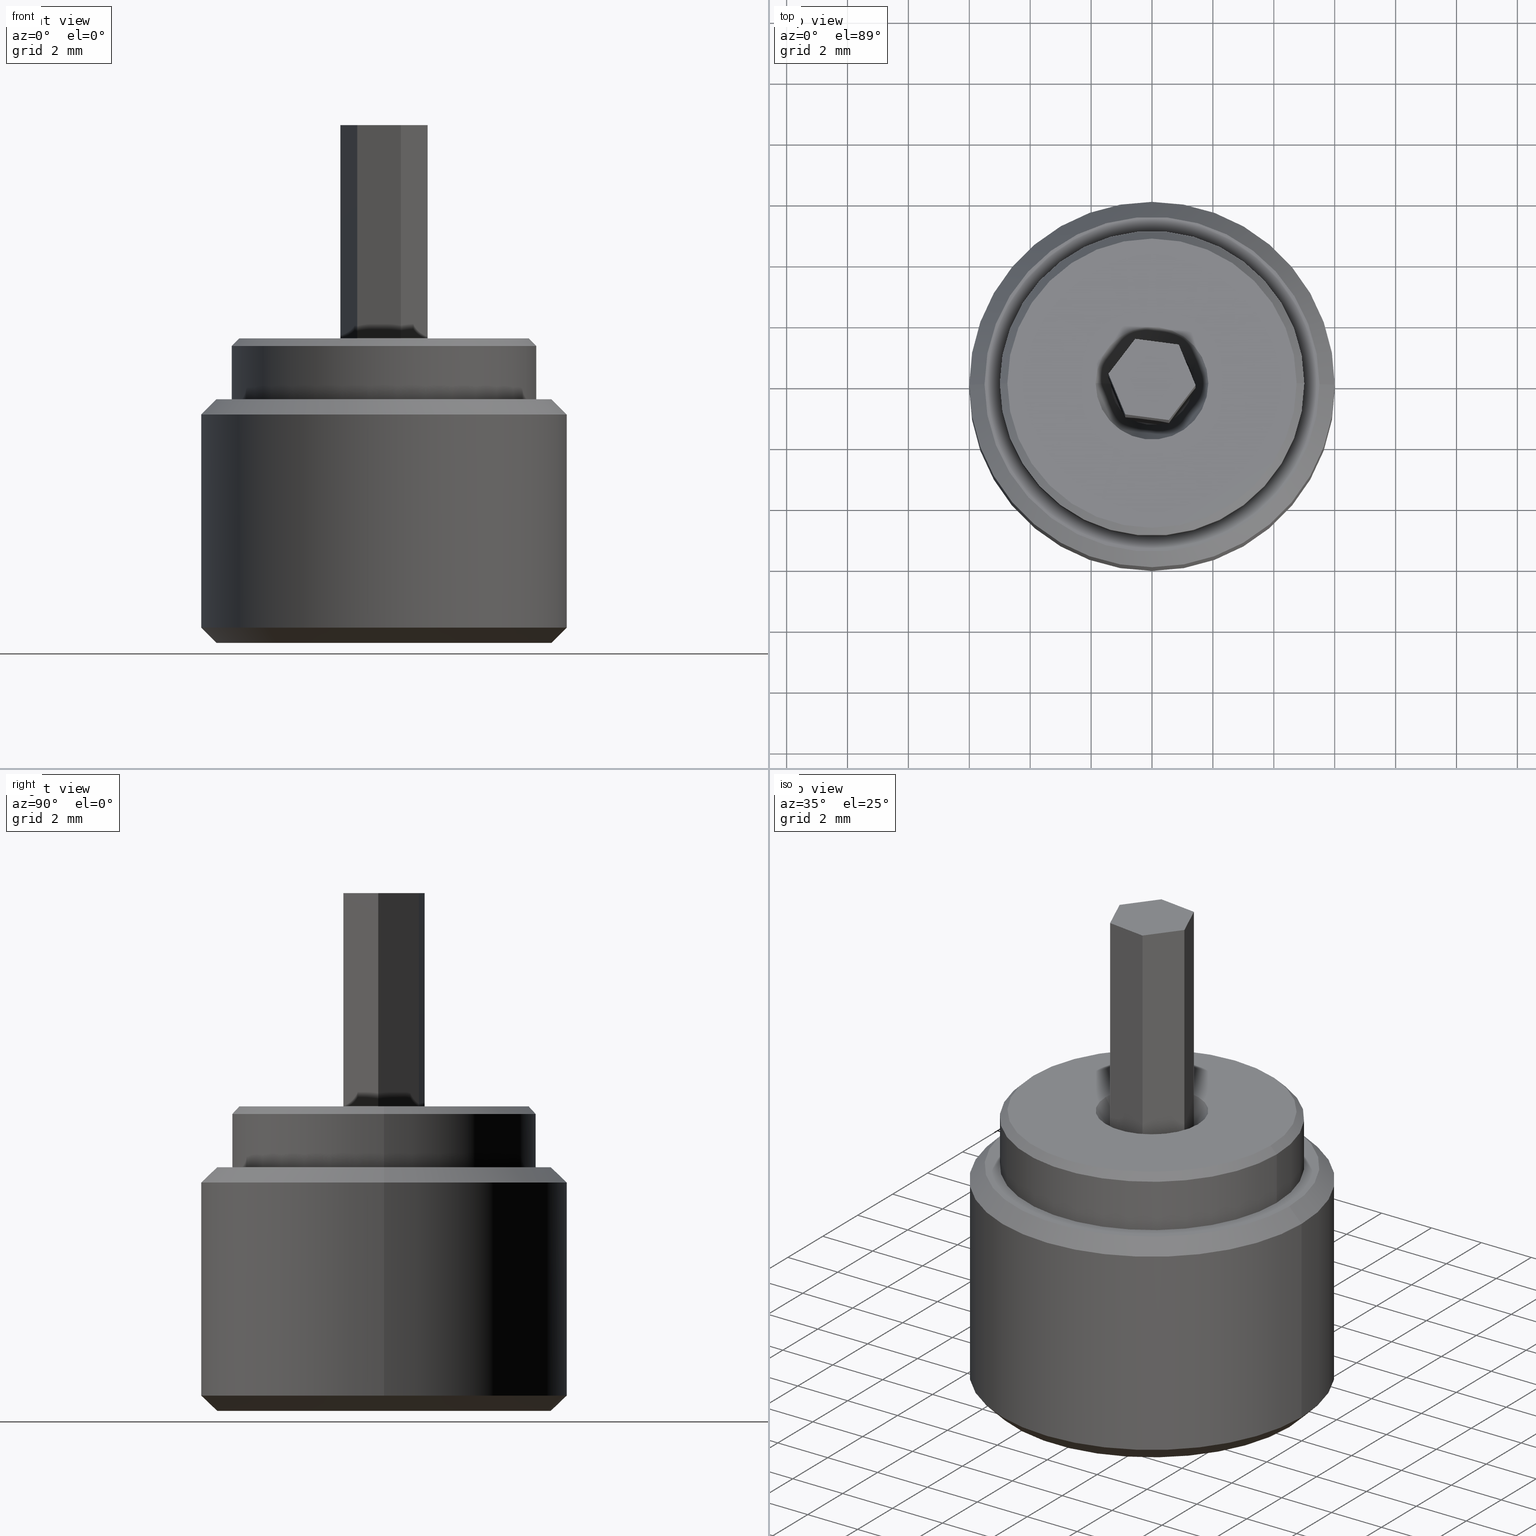
[diagram: canonical four-view strip — front | top / right | iso, engineering-drawing reading convention]
A machine part, canonical four-view strip (front | top / right | iso — engineering-drawing reading convention). The complete STEP part file that produces these views, byte-faithful:
ISO-10303-21;
HEADER;
FILE_DESCRIPTION (( 'STEP AP203' ),
    '1' );
FILE_NAME ('1.8.4.4_ZFN-#2.5-1210_��׼2.5x2.5mm��š��ĸ���壬��4mm��������12mm��L=10mm���㲿��.STEP',
    '2024-05-31T07:32:20',
    ( '' ),
    ( '' ),
    'SwSTEP 2.0',
    'SolidWorks 2021',
    '' );
FILE_SCHEMA (( 'CONFIG_CONTROL_DESIGN' ));
ENDSEC;

DATA;
#1 = ADVANCED_FACE ( 'NONE', ( #515 ), #139, .T. ) ;
#2 = VECTOR ( 'NONE', #793, 1000.000000000000114 ) ;
#3 = DIRECTION ( 'NONE',  ( 1.000000000000000000, 0.000000000000000000, 0.000000000000000000 ) ) ;
#4 = ITEM_DEFINED_TRANSFORMATION ( 'NONE', 'NONE', #776,  #491 ) ;
#5 = CARTESIAN_POINT ( 'NONE',  ( 0.000000000000000000, 0.000000000000000000, 0.000000000000000000 ) ) ;
#6 = EDGE_CURVE ( 'NONE', #939, #51, #166, .T. ) ;
#7 = FACE_BOUND ( 'NONE', #13, .T. ) ;
#8 = VERTEX_POINT ( 'NONE', #840 ) ;
#9 = APPROVAL_ROLE ( '' ) ;
#10 = CARTESIAN_POINT ( 'NONE',  ( -1.250000000000000444, -0.7216878364870319418, 11.00000000000000000 ) ) ;
#11 = VECTOR ( 'NONE', #351, 1000.000000000000000 ) ;
#12 = ADVANCED_FACE ( 'NONE', ( #765 ), #881, .T. ) ;
#13 = EDGE_LOOP ( 'NONE', ( #371, #719 ) ) ;
#14 =( LENGTH_UNIT ( ) NAMED_UNIT ( * ) SI_UNIT ( .MILLI., .METRE. ) );
#15 = CARTESIAN_POINT ( 'NONE',  ( 1.249999999999999334, -0.7216878364870328300, 11.00000000000000000 ) ) ;
#16 = FACE_OUTER_BOUND ( 'NONE', #32, .T. ) ;
#17 = LOCAL_TIME ( 15, 32, 20.00000000000000000, #183 ) ;
#18 = ADVANCED_FACE ( 'NONE', ( #469 ), #597, .T. ) ;
#19 = ORIENTED_EDGE ( 'NONE', *, *, #288, .T. ) ;
#20 = PERSON_AND_ORGANIZATION ( #142, #266 ) ;
#21 = PLANE ( 'NONE',  #64 ) ;
#22 = DIRECTION ( 'NONE',  ( 0.000000000000000000, 0.000000000000000000, 1.000000000000000000 ) ) ;
#23 = APPLICATION_CONTEXT ( 'configuration controlled 3d designs of mechanical parts and assemblies' ) ;
#24 = PERSON_AND_ORGANIZATION_ROLE ( 'design_supplier' ) ;
#25 = CARTESIAN_POINT ( 'NONE',  ( 6.000000000000000888, 0.000000000000000000, 0.4999999999999987232 ) ) ;
#26 = FACE_OUTER_BOUND ( 'NONE', #261, .T. ) ;
#27 = CALENDAR_DATE ( 2024, 31, 5 ) ;
#28 = CARTESIAN_POINT ( 'NONE',  ( -1.250000000000000444, 0.7216878364870323859, 0.000000000000000000 ) ) ;
#29 = ADVANCED_FACE ( 'NONE', ( #7, #847 ), #687, .T. ) ;
#30 = DIRECTION ( 'NONE',  ( -0.4999999999999995004, 0.8660254037844390407, 0.000000000000000000 ) ) ;
#31 = APPROVAL_PERSON_ORGANIZATION ( #345, #949, #333 ) ;
#32 = EDGE_LOOP ( 'NONE', ( #654, #836 ) ) ;
#33 = CALENDAR_DATE ( 2024, 31, 5 ) ;
#34 = CARTESIAN_POINT ( 'NONE',  ( -1.250000000000000444, -0.7216878364870319418, 11.00000000000000000 ) ) ;
#35 = DIRECTION ( 'NONE',  ( 1.000000000000000000, 0.000000000000000000, 0.000000000000000000 ) ) ;
#36 = EDGE_LOOP ( 'NONE', ( #503, #751, #144, #643 ) ) ;
#37 = DATE_AND_TIME ( #644, #965 ) ;
#38 = FACE_OUTER_BOUND ( 'NONE', #867, .T. ) ;
#39 = DIRECTION ( 'NONE',  ( -1.000000000000000000, 0.000000000000000000, 0.000000000000000000 ) ) ;
#40 = EDGE_CURVE ( 'NONE', #224, #892, #303, .T. ) ;
#41 = ORIENTED_EDGE ( 'NONE', *, *, #566, .F. ) ;
#42 = DATE_AND_TIME ( #434, #492 ) ;
#43 = VECTOR ( 'NONE', #779, 1000.000000000000000 ) ;
#44 = DIRECTION ( 'NONE',  ( -1.000000000000000000, 0.000000000000000000, 0.000000000000000000 ) ) ;
#45 = FACE_OUTER_BOUND ( 'NONE', #294, .T. ) ;
#46 = ORIENTED_EDGE ( 'NONE', *, *, #113, .T. ) ;
#47 = DATE_TIME_ROLE ( 'classification_date' ) ;
#48 = EDGE_CURVE ( 'NONE', #51, #761, #89, .T. ) ;
#49 = VECTOR ( 'NONE', #164, 1000.000000000000000 ) ;
#50 = DIRECTION ( 'NONE',  ( 0.000000000000000000, 0.000000000000000000, 1.000000000000000000 ) ) ;
#51 = VERTEX_POINT ( 'NONE', #381 ) ;
#52 = PERSON_AND_ORGANIZATION ( #142, #266 ) ;
#53 = LINE ( 'NONE', #581, #396 ) ;
#54 = EDGE_CURVE ( 'NONE', #615, #585, #858, .T. ) ;
#55 = DIRECTION ( 'NONE',  ( 1.000000000000000000, 0.000000000000000000, 0.000000000000000000 ) ) ;
#56 = ORIENTED_EDGE ( 'NONE', *, *, #702, .T. ) ;
#57 = AXIS2_PLACEMENT_3D ( 'NONE', #501, #826, #155 ) ;
#58 = AXIS2_PLACEMENT_3D ( 'NONE', #624, #933, #3 ) ;
#59 = APPROVAL ( #295, 'δָ��' ) ;
#60 = CARTESIAN_POINT ( 'NONE',  ( 2.657026514365334820E-16, 1.443375672974064106, 11.00000000000000000 ) ) ;
#61 = ORIENTED_EDGE ( 'NONE', *, *, #809, .F. ) ;
#62 = PERSON_AND_ORGANIZATION_ROLE ( 'classification_officer' ) ;
#63 =( LENGTH_UNIT ( ) NAMED_UNIT ( * ) SI_UNIT ( .MILLI., .METRE. ) );
#64 = AXIS2_PLACEMENT_3D ( 'NONE', #231, #937, #547 ) ;
#65 = PRODUCT_DEFINITION_FORMATION_WITH_SPECIFIED_SOURCE ( '�κ�', '', #126, .NOT_KNOWN. ) ;
#66 = DIRECTION ( 'NONE',  ( -0.000000000000000000, -0.000000000000000000, 1.000000000000000000 ) ) ;
#67 = ORIENTED_EDGE ( 'NONE', *, *, #852, .T. ) ;
#68 = APPROVAL_DATE_TIME ( #586, #949 ) ;
#69 = DIRECTION ( 'NONE',  ( 1.000000000000000000, 0.000000000000000000, 0.000000000000000000 ) ) ;
#70 = VERTEX_POINT ( 'NONE', #532 ) ;
#71 = CALENDAR_DATE ( 2024, 31, 5 ) ;
#72 = EDGE_CURVE ( 'NONE', #387, #358, #959, .T. ) ;
#73 = CARTESIAN_POINT ( 'NONE',  ( 1.249999999999999334, -0.7216878364870328300, 0.000000000000000000 ) ) ;
#74 = VECTOR ( 'NONE', #185, 1000.000000000000000 ) ;
#75 = CARTESIAN_POINT ( 'NONE',  ( 1.249999999999999556, 0.7216878364870324969, 0.000000000000000000 ) ) ;
#76 = APPROVAL_DATE_TIME ( #672, #857 ) ;
#77 = ADVANCED_FACE ( 'NONE', ( #16, #693 ), #313, .T. ) ;
#78 = AXIS2_PLACEMENT_3D ( 'NONE', #743, #748, #823 ) ;
#79 = DIRECTION ( 'NONE',  ( 0.000000000000000000, 0.000000000000000000, -1.000000000000000000 ) ) ;
#80 = APPLICATION_PROTOCOL_DEFINITION ( 'international standard', 'config_control_design', 1994, #23 ) ;
#81 = CARTESIAN_POINT ( 'NONE',  ( 1.350000000000000089, 0.000000000000000000, 6.000000000000000000 ) ) ;
#82 = ADVANCED_FACE ( 'NONE', ( #619 ), #603, .F. ) ;
#83 = DIRECTION ( 'NONE',  ( 1.000000000000000000, 0.000000000000000000, 0.000000000000000000 ) ) ;
#84 = ORIENTED_EDGE ( 'NONE', *, *, #774, .T. ) ;
#85 = DATE_AND_TIME ( #27, #415 ) ;
#86 = CARTESIAN_POINT ( 'NONE',  ( 1.350000000000000089, 0.000000000000000000, 9.133974596215555408 ) ) ;
#87 = EDGE_CURVE ( 'NONE', #828, #149, #723, .T. ) ;
#88 = VECTOR ( 'NONE', #658, 1000.000000000000000 ) ;
#89 = LINE ( 'NONE', #398, #908 ) ;
#90 = PERSON_AND_ORGANIZATION ( #142, #266 ) ;
#91 = DIRECTION ( 'NONE',  ( 0.5000000000000001110, 0.8660254037844385966, -0.000000000000000000 ) ) ;
#92 = VECTOR ( 'NONE', #631, 1000.000000000000000 ) ;
#93 = DIRECTION ( 'NONE',  ( -0.8660254037844387076, 0.4999999999999998890, 0.000000000000000000 ) ) ;
#94 = LOCAL_TIME ( 15, 32, 20.00000000000000000, #957 ) ;
#95 = ORIENTED_EDGE ( 'NONE', *, *, #732, .T. ) ;
#96 = PERSON_AND_ORGANIZATION_ROLE ( 'creator' ) ;
#97 = DIRECTION ( 'NONE',  ( 0.000000000000000000, 0.000000000000000000, -1.000000000000000000 ) ) ;
#98 = DIRECTION ( 'NONE',  ( -0.000000000000000000, -0.000000000000000000, 1.000000000000000000 ) ) ;
#99 = EDGE_LOOP ( 'NONE', ( #46, #19 ) ) ;
#100 = DATE_AND_TIME ( #621, #451 ) ;
#101 = ADVANCED_FACE ( 'NONE', ( #938 ), #200, .T. ) ;
#102 = CARTESIAN_POINT ( 'NONE',  ( -4.750000000000005329, 0.000000000000000000, 10.00000000000000178 ) ) ;
#103 = DIRECTION ( 'NONE',  ( 1.000000000000000000, 0.000000000000000000, 0.000000000000000000 ) ) ;
#104 = AXIS2_PLACEMENT_3D ( 'NONE', #340, #861, #409 ) ;
#105 = ORIENTED_EDGE ( 'NONE', *, *, #243, .F. ) ;
#106 = DATE_AND_TIME ( #812, #927 ) ;
#107 = CC_DESIGN_PERSON_AND_ORGANIZATION_ASSIGNMENT ( #428, #635, ( #233 ) ) ;
#108 = DIRECTION ( 'NONE',  ( 1.000000000000000000, 0.000000000000000000, 0.000000000000000000 ) ) ;
#109 = DIRECTION ( 'NONE',  ( 1.502314598737158538E-16, 1.000000000000000000, 0.000000000000000000 ) ) ;
#110 = APPROVAL_PERSON_ORGANIZATION ( #247, #681, #550 ) ;
#111 = PERSON_AND_ORGANIZATION ( #142, #266 ) ;
#112 = DIRECTION ( 'NONE',  ( -0.000000000000000000, -0.000000000000000000, 1.000000000000000000 ) ) ;
#113 = EDGE_CURVE ( 'NONE', #115, #873, #182, .T. ) ;
#114 = CARTESIAN_POINT ( 'NONE',  ( 6.000000000000000888, 7.347880794884120722E-16, 10.00000000000000000 ) ) ;
#115 = VERTEX_POINT ( 'NONE', #529 ) ;
#116 = PERSON_AND_ORGANIZATION ( #142, #266 ) ;
#117 = APPROVAL_PERSON_ORGANIZATION ( #291, #513, #216 ) ;
#118 = DIRECTION ( 'NONE',  ( -0.000000000000000000, -0.000000000000000000, 1.000000000000000000 ) ) ;
#119 = CC_DESIGN_DATE_AND_TIME_ASSIGNMENT ( #42, #893, ( #484 ) ) ;
#120 = DIRECTION ( 'NONE',  ( 0.000000000000000000, 0.000000000000000000, 1.000000000000000000 ) ) ;
#121 = ORIENTED_EDGE ( 'NONE', *, *, #943, .T. ) ;
#122 = PERSON_AND_ORGANIZATION ( #142, #266 ) ;
#123 = CIRCLE ( 'NONE', #673, 5.500000000000000888 ) ;
#124 = DIRECTION ( 'NONE',  ( 0.8660254037844385966, -0.5000000000000001110, 0.000000000000000000 ) ) ;
#125 = LINE ( 'NONE', #10, #578 ) ;
#126 = PRODUCT ( '1.8.4.4.1_��׼2.5x2.5mm��š��ĸ���壬������12mm��L=10mm', '1.8.4.4.1_��׼2.5x2.5mm��š��ĸ���壬������12mm��L=10mm', '', ( #565 ) ) ;
#127 = ORIENTED_EDGE ( 'NONE', *, *, #288, .F. ) ;
#128 = APPLICATION_PROTOCOL_DEFINITION ( 'international standard', 'config_control_design', 1994, #889 ) ;
#129 = EDGE_CURVE ( 'NONE', #203, #8, #402, .T. ) ;
#130 = AXIS2_PLACEMENT_3D ( 'NONE', #618, #97, #389 ) ;
#131 = CARTESIAN_POINT ( 'NONE',  ( 4.750000000000007105, 5.970153145843351291E-16, 10.00000000000000000 ) ) ;
#132 = DIRECTION ( 'NONE',  ( 1.000000000000000000, 0.000000000000000000, 0.000000000000000000 ) ) ;
#133 = FACE_OUTER_BOUND ( 'NONE', #36, .T. ) ;
#134 = CC_DESIGN_PERSON_AND_ORGANIZATION_ASSIGNMENT ( #720, #792, ( #484 ) ) ;
#135 = CARTESIAN_POINT ( 'NONE',  ( 1.249999999999999556, 0.7216878364870324969, 11.00000000000000000 ) ) ;
#136 = EDGE_LOOP ( 'NONE', ( #594, #668 ) ) ;
#137 = CALENDAR_DATE ( 2024, 31, 5 ) ;
#138 = FACE_OUTER_BOUND ( 'NONE', #448, .T. ) ;
#139 = CYLINDRICAL_SURFACE ( 'NONE', #344, 6.000000000000000888 ) ;
#140 = DIRECTION ( 'NONE',  ( -0.9237280213470682178, -0.3830490080632377725, 0.000000000000000000 ) ) ;
#141 = APPROVAL_PERSON_ORGANIZATION ( #968, #841, #575 ) ;
#142 = PERSON ( 'δָ��', 'δָ��', 'δָ��', ('δָ��'), ('δָ��'), ('δָ��') ) ;
#143 = EDGE_CURVE ( 'NONE', #203, #589, #737, .T. ) ;
#144 = ORIENTED_EDGE ( 'NONE', *, *, #789, .T. ) ;
#145 = SHAPE_DEFINITION_REPRESENTATION ( #646, #802 ) ;
#146 = CARTESIAN_POINT ( 'NONE',  ( 0.000000000000000000, 0.000000000000000000, 6.000000000000000000 ) ) ;
#147 = MANIFOLD_SOLID_BREP ( '͹̨-����1', #293 ) ;
#148 = CC_DESIGN_DATE_AND_TIME_ASSIGNMENT ( #100, #241, ( #746 ) ) ;
#149 = VERTEX_POINT ( 'NONE', #803 ) ;
#150 = DATE_AND_TIME ( #137, #161 ) ;
#151 = CARTESIAN_POINT ( 'NONE',  ( -5.000000000000000000, 6.123233995736765296E-16, 9.750000000000005329 ) ) ;
#152 = AXIS2_PLACEMENT_3D ( 'NONE', #201, #206, #815 ) ;
#153 = ORIENTED_EDGE ( 'NONE', *, *, #440, .F. ) ;
#154 = CARTESIAN_POINT ( 'NONE',  ( 0.000000000000000000, 0.000000000000000000, 0.000000000000000000 ) ) ;
#155 = DIRECTION ( 'NONE',  ( 1.000000000000000000, 0.000000000000000000, 0.000000000000000000 ) ) ;
#156 =( GEOMETRIC_REPRESENTATION_CONTEXT ( 3 ) GLOBAL_UNCERTAINTY_ASSIGNED_CONTEXT ( ( #202 ) ) GLOBAL_UNIT_ASSIGNED_CONTEXT ( ( #14, #845, #400 ) ) REPRESENTATION_CONTEXT ( 'NONE', 'WORKASPACE' ) );
#157 = CC_DESIGN_APPROVAL ( #949, ( #65 ) ) ;
#158 = DIRECTION ( 'NONE',  ( 1.000000000000000000, 0.000000000000000000, -0.000000000000000000 ) ) ;
#159 = CC_DESIGN_DATE_AND_TIME_ASSIGNMENT ( #747, #359, ( #385 ) ) ;
#160 = DIRECTION ( 'NONE',  ( -1.000000000000000000, 1.502314598737158785E-16, 0.000000000000000000 ) ) ;
#161 = LOCAL_TIME ( 15, 32, 20.00000000000000000, #898 ) ;
#162 = ORIENTED_EDGE ( 'NONE', *, *, #809, .T. ) ;
#163 = APPLICATION_PROTOCOL_DEFINITION ( 'international standard', 'config_control_design', 1994, #191 ) ;
#164 = DIRECTION ( 'NONE',  ( 0.000000000000000000, -1.000000000000000000, 0.000000000000000000 ) ) ;
#165 = AXIS2_PLACEMENT_3D ( 'NONE', #663, #971, #505 ) ;
#166 = LINE ( 'NONE', #612, #871 ) ;
#167 = AXIS2_PLACEMENT_3D ( 'NONE', #675, #465, #83 ) ;
#168 = ORIENTED_EDGE ( 'NONE', *, *, #54, .F. ) ;
#169 = FACE_OUTER_BOUND ( 'NONE', #421, .T. ) ;
#170 = AXIS2_PLACEMENT_3D ( 'NONE', #401, #160, #178 ) ;
#171 = CARTESIAN_POINT ( 'NONE',  ( 1.249999999999999334, -0.7216878364870328300, 11.00000000000000000 ) ) ;
#172 = ORIENTED_EDGE ( 'NONE', *, *, #426, .F. ) ;
#173 = CARTESIAN_POINT ( 'NONE',  ( -1.250000000000000444, 0.7216878364870323859, 0.000000000000000000 ) ) ;
#174 = DIRECTION ( 'NONE',  ( 0.000000000000000000, 0.000000000000000000, 1.000000000000000000 ) ) ;
#175 = CC_DESIGN_DATE_AND_TIME_ASSIGNMENT ( #85, #616, ( #323 ) ) ;
#176 = VERTEX_POINT ( 'NONE', #265 ) ;
#177 = COORDINATED_UNIVERSAL_TIME_OFFSET ( 8, 0, .AHEAD. ) ;
#178 = DIRECTION ( 'NONE',  ( -1.502314598737158785E-16, -1.000000000000000000, 0.000000000000000000 ) ) ;
#179 = DIRECTION ( 'NONE',  ( 1.000000000000000000, 0.000000000000000000, 0.000000000000000000 ) ) ;
#180 = CONICAL_SURFACE ( 'NONE', #325, 1.350000000000000089, 0.5235987755982995928 ) ;
#181 = ORIENTED_EDGE ( 'NONE', *, *, #275, .T. ) ;
#182 = CIRCLE ( 'NONE', #225, 5.000000000000000000 ) ;
#183 = COORDINATED_UNIVERSAL_TIME_OFFSET ( 8, 0, .AHEAD. ) ;
#184 = DIRECTION ( 'NONE',  ( -0.000000000000000000, 0.000000000000000000, -1.000000000000000000 ) ) ;
#185 = DIRECTION ( 'NONE',  ( 0.000000000000000000, -1.000000000000000000, 0.000000000000000000 ) ) ;
#186 = AXIS2_PLACEMENT_3D ( 'NONE', #954, #355, #806 ) ;
#187 = CC_DESIGN_APPROVAL ( #446, ( #323 ) ) ;
#188 = ORIENTED_EDGE ( 'NONE', *, *, #552, .F. ) ;
#189 = PERSON_AND_ORGANIZATION ( #142, #266 ) ;
#190 = DIRECTION ( 'NONE',  ( 1.000000000000000000, 0.000000000000000000, 0.000000000000000000 ) ) ;
#191 = APPLICATION_CONTEXT ( 'configuration controlled 3d designs of mechanical parts and assemblies' ) ;
#192 = EDGE_CURVE ( 'NONE', #499, #816, #770, .T. ) ;
#193 = CARTESIAN_POINT ( 'NONE',  ( 0.000000000000000000, 0.000000000000000000, 0.4999999999999987232 ) ) ;
#194 = EDGE_LOOP ( 'NONE', ( #127, #433, #849, #769 ) ) ;
#195 = PERSON_AND_ORGANIZATION ( #142, #266 ) ;
#196 = LINE ( 'NONE', #300, #250 ) ;
#197 = CARTESIAN_POINT ( 'NONE',  ( -5.000000000000000000, 6.123233995736765296E-16, -16.97056274847714263 ) ) ;
#198 = EDGE_LOOP ( 'NONE', ( #348, #665, #327, #95 ) ) ;
#199 = CALENDAR_DATE ( 2024, 31, 5 ) ;
#200 = CONICAL_SURFACE ( 'NONE', #722, 4.750000000000005329, 0.7853981633974447263 ) ;
#201 = CARTESIAN_POINT ( 'NONE',  ( 0.000000000000000000, 0.000000000000000000, 0.000000000000000000 ) ) ;
#202 = UNCERTAINTY_MEASURE_WITH_UNIT (LENGTH_MEASURE( 1.000000000000000082E-05 ), #14, 'distance_accuracy_value', 'NONE');
#203 = VERTEX_POINT ( 'NONE', #966 ) ;
#204 = PERSON_AND_ORGANIZATION ( #142, #266 ) ;
#205 = CIRCLE ( 'NONE', #662, 1.350000000000000089 ) ;
#206 = DIRECTION ( 'NONE',  ( -0.000000000000000000, -0.000000000000000000, -1.000000000000000000 ) ) ;
#207 = ORIENTED_EDGE ( 'NONE', *, *, #6, .T. ) ;
#208 = ITEM_DEFINED_TRANSFORMATION ( 'NONE', 'NONE', #688,  #491 ) ;
#209 = APPROVAL_PERSON_ORGANIZATION ( #204, #59, #903 ) ;
#210 = DIRECTION ( 'NONE',  ( 1.000000000000000000, 0.000000000000000000, 0.000000000000000000 ) ) ;
#211 = CALENDAR_DATE ( 2024, 31, 5 ) ;
#212 = DIRECTION ( 'NONE',  ( 1.000000000000000000, 0.000000000000000000, 0.000000000000000000 ) ) ;
#213 = EDGE_CURVE ( 'NONE', #8, #946, #341, .T. ) ;
#214 = DIRECTION ( 'NONE',  ( -0.000000000000000000, -0.000000000000000000, 1.000000000000000000 ) ) ;
#215 = EDGE_LOOP ( 'NONE', ( #314, #519, #781, #902 ) ) ;
#216 = APPROVAL_ROLE ( '' ) ;
#217 = CARTESIAN_POINT ( 'NONE',  ( 0.000000000000000000, 0.000000000000000000, 9.133974596215555408 ) ) ;
#218 =( GEOMETRIC_REPRESENTATION_CONTEXT ( 3 ) GLOBAL_UNCERTAINTY_ASSIGNED_CONTEXT ( ( #628 ) ) GLOBAL_UNIT_ASSIGNED_CONTEXT ( ( #454, #523, #512 ) ) REPRESENTATION_CONTEXT ( 'NONE', 'WORKASPACE' ) );
#219 = APPROVAL_PERSON_ORGANIZATION ( #230, #446, #9 ) ;
#220 = PRODUCT_RELATED_PRODUCT_CATEGORY ( 'detail', '', ( #126 ) ) ;
#221 = DATE_TIME_ROLE ( 'classification_date' ) ;
#222 = LINE ( 'NONE', #73, #758 ) ;
#223 = EDGE_CURVE ( 'NONE', #816, #499, #596, .T. ) ;
#224 = VERTEX_POINT ( 'NONE', #637 ) ;
#225 = AXIS2_PLACEMENT_3D ( 'NONE', #753, #298, #916 ) ;
#226 = VECTOR ( 'NONE', #93, 1000.000000000000114 ) ;
#227 = DIRECTION ( 'NONE',  ( 0.8660254037844385966, -0.5000000000000001110, 0.000000000000000000 ) ) ;
#228 = EDGE_CURVE ( 'NONE', #615, #452, #872, .T. ) ;
#229 = ORIENTED_EDGE ( 'NONE', *, *, #936, .T. ) ;
#230 = PERSON_AND_ORGANIZATION ( #142, #266 ) ;
#231 = CARTESIAN_POINT ( 'NONE',  ( 1.249999999999999556, 0.7216878364870324969, 11.00000000000000000 ) ) ;
#232 = CIRCLE ( 'NONE', #506, 5.000000000000000000 ) ;
#233 = PRODUCT_DEFINITION_FORMATION_WITH_SPECIFIED_SOURCE ( '�κ�', '', #800, .NOT_KNOWN. ) ;
#234 = DIRECTION ( 'NONE',  ( -0.000000000000000000, -0.000000000000000000, -1.000000000000000000 ) ) ;
#235 = ORIENTED_EDGE ( 'NONE', *, *, #54, .T. ) ;
#236 = DIRECTION ( 'NONE',  ( -0.000000000000000000, -0.000000000000000000, -1.000000000000000000 ) ) ;
#237 =( REPRESENTATION_RELATIONSHIP ('NONE','NONE', #430, #741 ) REPRESENTATION_RELATIONSHIP_WITH_TRANSFORMATION ( #208 )SHAPE_REPRESENTATION_RELATIONSHIP( ) );
#238 = CC_DESIGN_SECURITY_CLASSIFICATION ( #385, ( #990 ) ) ;
#239 = CARTESIAN_POINT ( 'NONE',  ( 0.000000000000000000, 0.000000000000000000, 7.500000000000000000 ) ) ;
#240 = EDGE_LOOP ( 'NONE', ( #734, #84, #121, #660 ) ) ;
#241 = DATE_TIME_ROLE ( 'classification_date' ) ;
#242 = LINE ( 'NONE', #622, #444 ) ;
#243 = EDGE_CURVE ( 'NONE', #589, #946, #649, .T. ) ;
#244 = AXIS2_PLACEMENT_3D ( 'NONE', #514, #66, #55 ) ;
#245 = CARTESIAN_POINT ( 'NONE',  ( 0.000000000000000000, 0.000000000000000000, 10.00000000000000178 ) ) ;
#246 = ORIENTED_EDGE ( 'NONE', *, *, #40, .T. ) ;
#247 = PERSON_AND_ORGANIZATION ( #142, #266 ) ;
#248 = CARTESIAN_POINT ( 'NONE',  ( 6.000000000000000888, 7.347880794884120722E-16, 0.4999999999999987232 ) ) ;
#249 = ADVANCED_FACE ( 'NONE', ( #26 ), #331, .F. ) ;
#250 = VECTOR ( 'NONE', #289, 1000.000000000000114 ) ;
#251 = LINE ( 'NONE', #713, #74 ) ;
#252 = ORIENTED_EDGE ( 'NONE', *, *, #528, .F. ) ;
#253 = APPROVAL_DATE_TIME ( #947, #681 ) ;
#254 = CARTESIAN_POINT ( 'NONE',  ( 0.000000000000000000, 0.000000000000000000, 11.00000000000000000 ) ) ;
#255 = LINE ( 'NONE', #114, #43 ) ;
#256 = ADVANCED_FACE ( 'NONE', ( #944 ), #260, .T. ) ;
#257 = ORIENTED_EDGE ( 'NONE', *, *, #852, .F. ) ;
#258 = COORDINATED_UNIVERSAL_TIME_OFFSET ( 8, 0, .AHEAD. ) ;
#259 = DIRECTION ( 'NONE',  ( -0.8660254037844389297, -0.4999999999999994449, 0.000000000000000000 ) ) ;
#260 = CONICAL_SURFACE ( 'NONE', #516, 6.000000000000000888, 0.7853981633974500554 ) ;
#261 = EDGE_LOOP ( 'NONE', ( #811, #923, #511, #188, #819, #985 ) ) ;
#262 = CALENDAR_DATE ( 2024, 31, 5 ) ;
#263 = CC_DESIGN_PERSON_AND_ORGANIZATION_ASSIGNMENT ( #541, #941, ( #323 ) ) ;
#264 = CARTESIAN_POINT ( 'NONE',  ( 0.000000000000000000, 0.000000000000000000, 7.500000000000000000 ) ) ;
#265 = CARTESIAN_POINT ( 'NONE',  ( 5.500000000000000888, 0.000000000000000000, 0.000000000000000000 ) ) ;
#266 = ORGANIZATION ( 'δָ��', 'δָ��', '' ) ;
#267 = ORIENTED_EDGE ( 'NONE', *, *, #440, .T. ) ;
#268 = PERSON_AND_ORGANIZATION_ROLE ( 'design_owner' ) ;
#269 = CARTESIAN_POINT ( 'NONE',  ( 0.000000000000000000, 0.000000000000000000, -16.97056274847714263 ) ) ;
#270 = CARTESIAN_POINT ( 'NONE',  ( 6.000000000000000888, 7.347880794884120722E-16, 7.500000000000000000 ) ) ;
#271 = EDGE_LOOP ( 'NONE', ( #777, #337, #56, #972 ) ) ;
#272 = COORDINATED_UNIVERSAL_TIME_OFFSET ( 8, 0, .AHEAD. ) ;
#273 = ORGANIZATION ( 'NAUO-ORG2', 'UNSPECIFIED', 'UNSPECIFIED' ) ;
#274 = LINE ( 'NONE', #419, #567 ) ;
#275 = EDGE_CURVE ( 'NONE', #382, #939, #251, .T. ) ;
#276 = DIRECTION ( 'NONE',  ( -0.000000000000000000, -0.000000000000000000, -1.000000000000000000 ) ) ;
#277 = COORDINATED_UNIVERSAL_TIME_OFFSET ( 8, 0, .AHEAD. ) ;
#278 = CARTESIAN_POINT ( 'NONE',  ( -6.000000000000000888, 0.000000000000000000, 0.4999999999999987232 ) ) ;
#279 = CC_DESIGN_DATE_AND_TIME_ASSIGNMENT ( #37, #571, ( #736 ) ) ;
#280 = CARTESIAN_POINT ( 'NONE',  ( -4.750000000000007105, 0.000000000000000000, 10.00000000000000000 ) ) ;
#281 = UNCERTAINTY_MEASURE_WITH_UNIT (LENGTH_MEASURE( 1.000000000000000082E-05 ), #63, 'distance_accuracy_value', 'NONE');
#282 = ORIENTED_EDGE ( 'NONE', *, *, #608, .T. ) ;
#283 = SECURITY_CLASSIFICATION_LEVEL ( 'unclassified' ) ;
#284 = APPROVAL_PERSON_ORGANIZATION ( #90, #645, #394 ) ;
#285 = CARTESIAN_POINT ( 'NONE',  ( 0.000000000000000000, 0.000000000000000000, 0.000000000000000000 ) ) ;
#286 = CARTESIAN_POINT ( 'NONE',  ( 0.000000000000000000, 0.000000000000000000, 9.133974596215555408 ) ) ;
#287 = ORIENTED_EDGE ( 'NONE', *, *, #599, .T. ) ;
#288 = EDGE_CURVE ( 'NONE', #873, #115, #641, .T. ) ;
#289 = DIRECTION ( 'NONE',  ( 0.8660254037844389297, 0.4999999999999994449, 0.000000000000000000 ) ) ;
#290 = CYLINDRICAL_SURFACE ( 'NONE', #57, 1.350000000000000089 ) ;
#291 = PERSON_AND_ORGANIZATION ( #317, #544 ) ;
#292 = APPROVAL ( #798, 'δָ��' ) ;
#293 = CLOSED_SHELL ( 'NONE', ( #297, #745, #696, #407, #899, #780, #638, #249 ) ) ;
#294 = EDGE_LOOP ( 'NONE', ( #153, #404, #257, #934 ) ) ;
#295 = APPROVAL_STATUS ( 'not_yet_approved' ) ;
#296 = VECTOR ( 'NONE', #496, 999.9999999999998863 ) ;
#297 = ADVANCED_FACE ( 'NONE', ( #336 ), #705, .F. ) ;
#298 = DIRECTION ( 'NONE',  ( -0.000000000000000000, -0.000000000000000000, -1.000000000000000000 ) ) ;
#299 = PERSON_AND_ORGANIZATION_ROLE ( 'design_supplier' ) ;
#300 = CARTESIAN_POINT ( 'NONE',  ( -8.576480461965417558E-16, -1.443375672974064106, 11.00000000000000000 ) ) ;
#301 = APPROVAL ( #787, 'δָ��' ) ;
#302 = ADVANCED_BREP_SHAPE_REPRESENTATION ( '', ( #147, #491 ), #218 ) ;
#303 = LINE ( 'NONE', #75, #226 ) ;
#304 = VERTEX_POINT ( 'NONE', #634 ) ;
#305 = DATE_AND_TIME ( #766, #397 ) ;
#306 = FACE_OUTER_BOUND ( 'NONE', #240, .T. ) ;
#307 = VECTOR ( 'NONE', #109, 1000.000000000000000 ) ;
#308 = CARTESIAN_POINT ( 'NONE',  ( 0.000000000000000000, 0.000000000000000000, 10.00000000000000178 ) ) ;
#309 = ORIENTED_EDGE ( 'NONE', *, *, #391, .T. ) ;
#310 = APPLICATION_PROTOCOL_DEFINITION ( 'international standard', 'config_control_design', 1994, #377 ) ;
#311 = DIRECTION ( 'NONE',  ( 1.000000000000000000, 0.000000000000000000, -0.000000000000000000 ) ) ;
#312 = LOCAL_TIME ( 15, 32, 20.00000000000000000, #560 ) ;
#313 = PLANE ( 'NONE',  #922 ) ;
#314 = ORIENTED_EDGE ( 'NONE', *, *, #862, .T. ) ;
#315 = COORDINATED_UNIVERSAL_TIME_OFFSET ( 8, 0, .AHEAD. ) ;
#316 = EDGE_CURVE ( 'NONE', #8, #797, #255, .T. ) ;
#317 = PERSON ( 'NAUO-PER1', 'UNSPECIFIED', 'UNSPECIFIED', ('UNSPECIFIED'), ('UNSPECIFIED'), ('UNSPECIFIED') ) ;
#318 = CARTESIAN_POINT ( 'NONE',  ( 1.350000000000000089, 0.000000000000000000, 6.000000000000000000 ) ) ;
#319 = CARTESIAN_POINT ( 'NONE',  ( 0.000000000000000000, 0.000000000000000000, 0.000000000000000000 ) ) ;
#320 = DESIGN_CONTEXT ( 'detailed design', #931, 'design' ) ;
#321 = ORIENTED_EDGE ( 'NONE', *, *, #509, .F. ) ;
#322 = PERSON_AND_ORGANIZATION_ROLE ( 'classification_officer' ) ;
#323 = PRODUCT_DEFINITION ( 'δ֪', '', #982, #403 ) ;
#324 = FACE_OUTER_BOUND ( 'NONE', #215, .T. ) ;
#325 = AXIS2_PLACEMENT_3D ( 'NONE', #653, #50, #834 ) ;
#326 = CARTESIAN_POINT ( 'NONE',  ( 0.000000000000000000, 0.000000000000000000, 10.00000000000000000 ) ) ;
#327 = ORIENTED_EDGE ( 'NONE', *, *, #678, .T. ) ;
#328 = LINE ( 'NONE', #773, #610 ) ;
#329 = EDGE_CURVE ( 'NONE', #842, #797, #940, .T. ) ;
#330 = AXIS2_PLACEMENT_3D ( 'NONE', #217, #592, #756 ) ;
#331 = PLANE ( 'NONE',  #376 ) ;
#332 = ORIENTED_EDGE ( 'NONE', *, *, #192, .F. ) ;
#333 = APPROVAL_ROLE ( '' ) ;
#334 = LINE ( 'NONE', #731, #533 ) ;
#335 = APPROVAL ( #730, 'δָ��' ) ;
#336 = FACE_OUTER_BOUND ( 'NONE', #804, .T. ) ;
#337 = ORIENTED_EDGE ( 'NONE', *, *, #757, .F. ) ;
#338 = SECURITY_CLASSIFICATION_LEVEL ( 'unclassified' ) ;
#339 = LINE ( 'NONE', #721, #296 ) ;
#340 = CARTESIAN_POINT ( 'NONE',  ( 0.000000000000000000, 0.000000000000000000, 8.000000000000000000 ) ) ;
#341 = CIRCLE ( 'NONE', #755, 6.000000000000000888 ) ;
#342 = ADVANCED_BREP_SHAPE_REPRESENTATION ( '', ( #810, #491 ), #647 ) ;
#343 = ORIENTED_EDGE ( 'NONE', *, *, #602, .F. ) ;
#344 = AXIS2_PLACEMENT_3D ( 'NONE', #853, #459, #682 ) ;
#345 = PERSON_AND_ORGANIZATION ( #142, #266 ) ;
#346 = CARTESIAN_POINT ( 'NONE',  ( 0.000000000000000000, 0.000000000000000000, 0.4999999999999987232 ) ) ;
#347 = APPROVAL_PERSON_ORGANIZATION ( #111, #335, #715 ) ;
#348 = ORIENTED_EDGE ( 'NONE', *, *, #457, .F. ) ;
#349 = DATE_AND_TIME ( #262, #17 ) ;
#350 = ADVANCED_FACE ( 'NONE', ( #493 ), #796, .T. ) ;
#351 = DIRECTION ( 'NONE',  ( -0.8660254037844389297, -0.4999999999999995559, 0.000000000000000000 ) ) ;
#352 = ORIENTED_EDGE ( 'NONE', *, *, #977, .T. ) ;
#353 = PERSON_AND_ORGANIZATION_ROLE ( 'design_supplier' ) ;
#354 = PRODUCT_DEFINITION_SHAPE ( 'NONE', 'NONE',  #990 ) ;
#355 = DIRECTION ( 'NONE',  ( -0.000000000000000000, -0.000000000000000000, 1.000000000000000000 ) ) ;
#356 = EDGE_CURVE ( 'NONE', #382, #609, #960, .T. ) ;
#357 = DIRECTION ( 'NONE',  ( 1.000000000000000000, 0.000000000000000000, 0.000000000000000000 ) ) ;
#358 = VERTEX_POINT ( 'NONE', #724 ) ;
#359 = DATE_TIME_ROLE ( 'classification_date' ) ;
#360 = AXIS2_PLACEMENT_3D ( 'NONE', #764, #384, #369 ) ;
#361 = AXIS2_PLACEMENT_3D ( 'NONE', #319, #844, #386 ) ;
#362 = DIRECTION ( 'NONE',  ( 1.000000000000000000, 0.000000000000000000, 0.000000000000000000 ) ) ;
#363 = CYLINDRICAL_SURFACE ( 'NONE', #244, 5.000000000000000000 ) ;
#364 = ADVANCED_FACE ( 'NONE', ( #45 ), #659, .T. ) ;
#365 = EDGE_LOOP ( 'NONE', ( #928, #956, #912, #494 ) ) ;
#366 = PERSON_AND_ORGANIZATION ( #911, #273 ) ;
#367 = CC_DESIGN_APPROVAL ( #292, ( #233 ) ) ;
#368 =( NAMED_UNIT ( * ) PLANE_ANGLE_UNIT ( ) SI_UNIT ( $, .RADIAN. ) );
#369 = DIRECTION ( 'NONE',  ( 1.000000000000000000, 0.000000000000000000, 0.000000000000000000 ) ) ;
#370 = ADVANCED_FACE ( 'NONE', ( #518 ), #180, .F. ) ;
#371 = ORIENTED_EDGE ( 'NONE', *, *, #87, .T. ) ;
#372 = CONTEXT_DEPENDENT_SHAPE_REPRESENTATION ( #237, #831 ) ;
#373 = DIRECTION ( 'NONE',  ( 1.502314598737158538E-16, 1.000000000000000000, 0.000000000000000000 ) ) ;
#374 = CC_DESIGN_APPROVAL ( #857, ( #480 ) ) ;
#375 = CALENDAR_DATE ( 2024, 31, 5 ) ;
#376 = AXIS2_PLACEMENT_3D ( 'NONE', #573, #950, #416 ) ;
#377 = APPLICATION_CONTEXT ( 'configuration controlled 3d designs of mechanical parts and assemblies' ) ;
#378 = CARTESIAN_POINT ( 'NONE',  ( 1.249999999999999334, -0.7216878364870328300, 11.00000000000000000 ) ) ;
#379 = VECTOR ( 'NONE', #860, 1000.000000000000000 ) ;
#380 = ADVANCED_FACE ( 'NONE', ( #306 ), #290, .F. ) ;
#381 = CARTESIAN_POINT ( 'NONE',  ( -8.576480461965417558E-16, -1.443375672974064106, 11.00000000000000000 ) ) ;
#382 = VERTEX_POINT ( 'NONE', #593 ) ;
#383 = MECHANICAL_CONTEXT ( 'NONE', #23, 'mechanical' ) ;
#384 = DIRECTION ( 'NONE',  ( -0.000000000000000000, -0.000000000000000000, -1.000000000000000000 ) ) ;
#385 = SECURITY_CLASSIFICATION ( '', '', #283 ) ;
#386 = DIRECTION ( 'NONE',  ( 1.000000000000000000, 0.000000000000000000, -0.000000000000000000 ) ) ;
#387 = VERTEX_POINT ( 'NONE', #81 ) ;
#388 = PERSON_AND_ORGANIZATION ( #142, #266 ) ;
#389 = DIRECTION ( 'NONE',  ( 1.000000000000000000, 0.000000000000000000, 0.000000000000000000 ) ) ;
#390 = AXIS2_PLACEMENT_3D ( 'NONE', #420, #718, #39 ) ;
#391 = EDGE_CURVE ( 'NONE', #946, #8, #458, .T. ) ;
#392 = DIRECTION ( 'NONE',  ( -0.000000000000000000, -0.000000000000000000, -1.000000000000000000 ) ) ;
#393 = ORIENTED_EDGE ( 'NONE', *, *, #356, .F. ) ;
#394 = APPROVAL_ROLE ( '' ) ;
#395 = DIRECTION ( 'NONE',  ( -0.8660254037844385966, 0.5000000000000001110, 0.000000000000000000 ) ) ;
#396 = VECTOR ( 'NONE', #880, 1000.000000000000000 ) ;
#397 = LOCAL_TIME ( 15, 32, 20.00000000000000000, #771 ) ;
#398 = CARTESIAN_POINT ( 'NONE',  ( -8.576480461965417558E-16, -1.443375672974064106, 11.00000000000000000 ) ) ;
#399 = EDGE_CURVE ( 'NONE', #939, #417, #125, .T. ) ;
#400 =( NAMED_UNIT ( * ) SI_UNIT ( $, .STERADIAN. ) SOLID_ANGLE_UNIT ( ) );
#401 = CARTESIAN_POINT ( 'NONE',  ( 1.249999999999999334, -0.7216878364870328300, 11.00000000000000000 ) ) ;
#402 = LINE ( 'NONE', #270, #704 ) ;
#403 = DESIGN_CONTEXT ( 'detailed design', #191, 'design' ) ;
#404 = ORIENTED_EDGE ( 'NONE', *, *, #890, .T. ) ;
#405 = CALENDAR_DATE ( 2024, 31, 5 ) ;
#406 = DIRECTION ( 'NONE',  ( 0.000000000000000000, 0.000000000000000000, -1.000000000000000000 ) ) ;
#407 = ADVANCED_FACE ( 'NONE', ( #986 ), #896, .F. ) ;
#408 = AXIS2_PLACEMENT_3D ( 'NONE', #569, #30, #259 ) ;
#409 = DIRECTION ( 'NONE',  ( 1.000000000000000000, 0.000000000000000000, 0.000000000000000000 ) ) ;
#410 = ORIENTED_EDGE ( 'NONE', *, *, #356, .T. ) ;
#411 = COORDINATED_UNIVERSAL_TIME_OFFSET ( 8, 0, .AHEAD. ) ;
#412 = CARTESIAN_POINT ( 'NONE',  ( -1.350000000000000089, 1.653273178848926867E-16, 6.000000000000000000 ) ) ;
#413 = CC_DESIGN_DATE_AND_TIME_ASSIGNMENT ( #604, #822, ( #711 ) ) ;
#414 = APPROVAL_PERSON_ORGANIZATION ( #580, #301, #422 ) ;
#415 = LOCAL_TIME ( 15, 32, 20.00000000000000000, #864 ) ;
#416 = DIRECTION ( 'NONE',  ( 1.000000000000000000, 0.000000000000000000, -0.000000000000000000 ) ) ;
#417 = VERTEX_POINT ( 'NONE', #891 ) ;
#418 = CALENDAR_DATE ( 2024, 31, 5 ) ;
#419 = CARTESIAN_POINT ( 'NONE',  ( -1.350000000000000089, 1.653273178848926867E-16, 9.133974596215555408 ) ) ;
#420 = CARTESIAN_POINT ( 'NONE',  ( 0.000000000000000000, 0.000000000000000000, 10.00000000000000000 ) ) ;
#421 = EDGE_LOOP ( 'NONE', ( #229, #470, #482, #917, #181, #207 ) ) ;
#422 = APPROVAL_ROLE ( '' ) ;
#423 = DIRECTION ( 'NONE',  ( -0.000000000000000000, -0.000000000000000000, -1.000000000000000000 ) ) ;
#424 = CARTESIAN_POINT ( 'NONE',  ( -1.250000000000000444, 0.7216878364870323859, 11.00000000000000000 ) ) ;
#425 = VECTOR ( 'NONE', #214, 1000.000000000000000 ) ;
#426 = EDGE_CURVE ( 'NONE', #304, #382, #907, .T. ) ;
#427 = EDGE_LOOP ( 'NONE', ( #246, #961, #725, #838 ) ) ;
#428 = PERSON_AND_ORGANIZATION ( #142, #266 ) ;
#429 = CARTESIAN_POINT ( 'NONE',  ( -1.350000000000000089, 1.653273178848926867E-16, 9.133974596215555408 ) ) ;
#430 = SHAPE_REPRESENTATION ( '1.8.4.4_ZFN-#2.5-1210_��׼2.5x2.5mm��š��ĸ���壬��4mm��������12mm��L=10mm���㲿��', ( #709, #776, #688 ), #156 ) ;
#431 = LINE ( 'NONE', #135, #486 ) ;
#432 = CIRCLE ( 'NONE', #925, 5.500000000000000888 ) ;
#433 = ORIENTED_EDGE ( 'NONE', *, *, #457, .T. ) ;
#434 = CALENDAR_DATE ( 2024, 31, 5 ) ;
#435 = ADVANCED_FACE ( 'NONE', ( #138 ), #975, .F. ) ;
#436 = CARTESIAN_POINT ( 'NONE',  ( 1.850000000000004530, 0.000000000000000000, 10.00000000000000000 ) ) ;
#437 = DIRECTION ( 'NONE',  ( 0.000000000000000000, 0.000000000000000000, 1.000000000000000000 ) ) ;
#438 = PERSON_AND_ORGANIZATION ( #142, #266 ) ;
#439 = CARTESIAN_POINT ( 'NONE',  ( 5.000000000000000000, 0.000000000000000000, 9.750000000000005329 ) ) ;
#440 = EDGE_CURVE ( 'NONE', #70, #176, #531, .T. ) ;
#441 = LINE ( 'NONE', #680, #919 ) ;
#442 = ORIENTED_EDGE ( 'NONE', *, *, #223, .T. ) ;
#443 = APPROVAL_STATUS ( 'not_yet_approved' ) ;
#444 = VECTOR ( 'NONE', #236, 1000.000000000000000 ) ;
#445 =( NAMED_UNIT ( * ) SI_UNIT ( $, .STERADIAN. ) SOLID_ANGLE_UNIT ( ) );
#446 = APPROVAL ( #535, 'δָ��' ) ;
#447 = FACE_OUTER_BOUND ( 'NONE', #136, .T. ) ;
#448 = EDGE_LOOP ( 'NONE', ( #600, #162, #650, #967 ) ) ;
#449 = PERSON_AND_ORGANIZATION_ROLE ( 'classification_officer' ) ;
#450 = VECTOR ( 'NONE', #851, 1000.000000000000000 ) ;
#451 = LOCAL_TIME ( 15, 32, 20.00000000000000000, #315 ) ;
#452 = VERTEX_POINT ( 'NONE', #733 ) ;
#453 = CALENDAR_DATE ( 2024, 31, 5 ) ;
#454 =( LENGTH_UNIT ( ) NAMED_UNIT ( * ) SI_UNIT ( .MILLI., .METRE. ) );
#455 = DIRECTION ( 'NONE',  ( -1.000000000000000000, 0.000000000000000000, 0.000000000000000000 ) ) ;
#456 = COORDINATED_UNIVERSAL_TIME_OFFSET ( 8, 0, .AHEAD. ) ;
#457 = EDGE_CURVE ( 'NONE', #873, #951, #464, .T. ) ;
#458 = CIRCLE ( 'NONE', #684, 6.000000000000000888 ) ;
#459 = DIRECTION ( 'NONE',  ( -0.000000000000000000, -0.000000000000000000, -1.000000000000000000 ) ) ;
#460 = AXIS2_PLACEMENT_3D ( 'NONE', #285, #598, #587 ) ;
#461 = EDGE_LOOP ( 'NONE', ( #352, #343, #671, #235 ) ) ;
#462 = CC_DESIGN_PERSON_AND_ORGANIZATION_ASSIGNMENT ( #195, #268, ( #800 ) ) ;
#463 = CC_DESIGN_APPROVAL ( #335, ( #736 ) ) ;
#464 = LINE ( 'NONE', #197, #425 ) ;
#465 = DIRECTION ( 'NONE',  ( 0.000000000000000000, 0.000000000000000000, 1.000000000000000000 ) ) ;
#466 = ORIENTED_EDGE ( 'NONE', *, *, #243, .T. ) ;
#467 = MECHANICAL_CONTEXT ( 'NONE', #377, 'mechanical' ) ;
#468 = CARTESIAN_POINT ( 'NONE',  ( 5.000000000000000000, 0.000000000000000000, -16.97056274847714263 ) ) ;
#469 = FACE_OUTER_BOUND ( 'NONE', #365, .T. ) ;
#470 = ORIENTED_EDGE ( 'NONE', *, *, #228, .T. ) ;
#471 = LINE ( 'NONE', #102, #614 ) ;
#472 = CC_DESIGN_PERSON_AND_ORGANIZATION_ASSIGNMENT ( #850, #24, ( #982 ) ) ;
#473 = APPROVAL_DATE_TIME ( #305, #446 ) ;
#474 = DIRECTION ( 'NONE',  ( -0.7071067811865451302, 0.000000000000000000, -0.7071067811865500152 ) ) ;
#475 = VECTOR ( 'NONE', #767, 1000.000000000000000 ) ;
#476 = DIRECTION ( 'NONE',  ( 1.000000000000000000, 0.000000000000000000, 0.000000000000000000 ) ) ;
#477 = EDGE_LOOP ( 'NONE', ( #525, #267 ) ) ;
#478 = PERSON_AND_ORGANIZATION_ROLE ( 'design_owner' ) ;
#479 = CARTESIAN_POINT ( 'NONE',  ( 1.249999999999999334, -0.7216878364870328300, 0.000000000000000000 ) ) ;
#480 = SECURITY_CLASSIFICATION ( '', '', #837 ) ;
#481 = DIRECTION ( 'NONE',  ( 0.7071067811865474617, 8.659560562354932858E-17, -0.7071067811865474617 ) ) ;
#482 = ORIENTED_EDGE ( 'NONE', *, *, #542, .T. ) ;
#483 = COORDINATED_UNIVERSAL_TIME_OFFSET ( 8, 0, .AHEAD. ) ;
#484 = PRODUCT_DEFINITION ( 'δ֪', '', #65, #884 ) ;
#485 = DIRECTION ( 'NONE',  ( -0.000000000000000000, -0.000000000000000000, -1.000000000000000000 ) ) ;
#486 = VECTOR ( 'NONE', #728, 1000.000000000000114 ) ;
#487 = CARTESIAN_POINT ( 'NONE',  ( 0.000000000000000000, 0.000000000000000000, 10.00000000000000000 ) ) ;
#488 = ORIENTED_EDGE ( 'NONE', *, *, #316, .F. ) ;
#489 = APPROVAL_DATE_TIME ( #106, #301 ) ;
#490 = CARTESIAN_POINT ( 'NONE',  ( 4.750000000000005329, 5.817072295949934328E-16, 10.00000000000000178 ) ) ;
#491 = AXIS2_PLACEMENT_3D ( 'NONE', #5, #670, #362 ) ;
#492 = LOCAL_TIME ( 15, 32, 20.00000000000000000, #411 ) ;
#493 = FACE_OUTER_BOUND ( 'NONE', #570, .T. ) ;
#494 = ORIENTED_EDGE ( 'NONE', *, *, #712, .F. ) ;
#495 = PERSON_AND_ORGANIZATION_ROLE ( 'creator' ) ;
#496 = DIRECTION ( 'NONE',  ( 0.5000000000000007772, 0.000000000000000000, 0.8660254037844382635 ) ) ;
#497 = ADVANCED_FACE ( 'NONE', ( #447 ), #808, .T. ) ;
#498 = DIRECTION ( 'NONE',  ( -0.000000000000000000, -0.000000000000000000, -1.000000000000000000 ) ) ;
#499 = VERTEX_POINT ( 'NONE', #280 ) ;
#500 = APPROVAL_ROLE ( '' ) ;
#501 = CARTESIAN_POINT ( 'NONE',  ( 0.000000000000000000, 0.000000000000000000, 6.000000000000000000 ) ) ;
#502 = VECTOR ( 'NONE', #498, 1000.000000000000000 ) ;
#503 = ORIENTED_EDGE ( 'NONE', *, *, #774, .F. ) ;
#504 = APPLICATION_PROTOCOL_DEFINITION ( 'international standard', 'config_control_design', 1994, #843 ) ;
#505 = DIRECTION ( 'NONE',  ( 0.8660254037844389297, 0.4999999999999995559, 0.000000000000000000 ) ) ;
#506 = AXIS2_PLACEMENT_3D ( 'NONE', #778, #406, #108 ) ;
#507 = ORIENTED_EDGE ( 'NONE', *, *, #129, .T. ) ;
#508 = CONTEXT_DEPENDENT_SHAPE_REPRESENTATION ( #749, #354 ) ;
#509 = EDGE_CURVE ( 'NONE', #589, #203, #123, .T. ) ;
#510 = DIRECTION ( 'NONE',  ( 0.000000000000000000, 0.000000000000000000, 1.000000000000000000 ) ) ;
#511 = ORIENTED_EDGE ( 'NONE', *, *, #608, .F. ) ;
#512 =( NAMED_UNIT ( * ) SI_UNIT ( $, .STERADIAN. ) SOLID_ANGLE_UNIT ( ) );
#513 = APPROVAL ( #839, 'UNKNOWN' ) ;
#514 = CARTESIAN_POINT ( 'NONE',  ( 0.000000000000000000, 0.000000000000000000, -16.97056274847714263 ) ) ;
#515 = FACE_OUTER_BOUND ( 'NONE', #791, .T. ) ;
#516 = AXIS2_PLACEMENT_3D ( 'NONE', #193, #642, #476 ) ;
#517 = CARTESIAN_POINT ( 'NONE',  ( 0.000000000000000000, 0.000000000000000000, 17.00000000000000000 ) ) ;
#518 = FACE_OUTER_BOUND ( 'NONE', #545, .T. ) ;
#519 = ORIENTED_EDGE ( 'NONE', *, *, #48, .F. ) ;
#520 = APPROVAL_DATE_TIME ( #150, #513 ) ;
#521 = CIRCLE ( 'NONE', #859, 6.000000000000000888 ) ;
#522 = SECURITY_CLASSIFICATION ( '', '', #338 ) ;
#523 =( NAMED_UNIT ( * ) PLANE_ANGLE_UNIT ( ) SI_UNIT ( $, .RADIAN. ) );
#524 = ADVANCED_FACE ( 'NONE', ( #820 ), #363, .T. ) ;
#525 = ORIENTED_EDGE ( 'NONE', *, *, #757, .T. ) ;
#526 = SHAPE_REPRESENTATION_RELATIONSHIP ( 'NONE' , 'NONE' ,  #741, #302 ) ;
#527 = LOCAL_TIME ( 15, 32, 20.00000000000000000, #456 ) ;
#528 = EDGE_CURVE ( 'NONE', #149, #828, #626, .T. ) ;
#529 = CARTESIAN_POINT ( 'NONE',  ( 5.000000000000000000, 0.000000000000000000, 8.000000000000000000 ) ) ;
#530 = ORIENTED_EDGE ( 'NONE', *, *, #566, .T. ) ;
#531 = CIRCLE ( 'NONE', #152, 5.500000000000000888 ) ;
#532 = CARTESIAN_POINT ( 'NONE',  ( -5.500000000000000888, 7.041719095097281866E-16, 0.000000000000000000 ) ) ;
#533 = VECTOR ( 'NONE', #124, 1000.000000000000000 ) ;
#534 = ORIENTED_EDGE ( 'NONE', *, *, #712, .T. ) ;
#535 = APPROVAL_STATUS ( 'not_yet_approved' ) ;
#536 = EDGE_CURVE ( 'NONE', #761, #585, #441, .T. ) ;
#537 = LOCAL_TIME ( 15, 32, 20.00000000000000000, #177 ) ;
#538 = LINE ( 'NONE', #468, #475 ) ;
#539 = DIRECTION ( 'NONE',  ( -0.000000000000000000, -0.000000000000000000, -1.000000000000000000 ) ) ;
#540 = ORIENTED_EDGE ( 'NONE', *, *, #914, .F. ) ;
#541 = PERSON_AND_ORGANIZATION ( #142, #266 ) ;
#542 = EDGE_CURVE ( 'NONE', #452, #304, #431, .T. ) ;
#543 = CARTESIAN_POINT ( 'NONE',  ( -8.576480461965417558E-16, -1.443375672974064106, 0.000000000000000000 ) ) ;
#544 = ORGANIZATION ( 'NAUO-ORG1', 'UNSPECIFIED', 'UNSPECIFIED' ) ;
#545 = EDGE_LOOP ( 'NONE', ( #61, #564, #554, #252 ) ) ;
#546 = APPROVAL_STATUS ( 'not_yet_approved' ) ;
#547 = DIRECTION ( 'NONE',  ( 0.8660254037844387076, -0.4999999999999998890, 0.000000000000000000 ) ) ;
#548 = AXIS2_PLACEMENT_3D ( 'NONE', #588, #901, #976 ) ;
#549 = DIRECTION ( 'NONE',  ( 0.000000000000000000, 0.000000000000000000, -1.000000000000000000 ) ) ;
#550 = APPROVAL_ROLE ( '' ) ;
#551 = LINE ( 'NONE', #783, #379 ) ;
#552 = EDGE_CURVE ( 'NONE', #892, #609, #667, .T. ) ;
#553 = DIRECTION ( 'NONE',  ( -0.000000000000000000, -0.000000000000000000, -1.000000000000000000 ) ) ;
#554 = ORIENTED_EDGE ( 'NONE', *, *, #824, .T. ) ;
#555 = DATE_AND_TIME ( #695, #537 ) ;
#556 = FACE_OUTER_BOUND ( 'NONE', #461, .T. ) ;
#557 = PRODUCT_DEFINITION_SHAPE ( 'NONE', 'NONE',  #736 ) ;
#558 = CARTESIAN_POINT ( 'NONE',  ( 0.000000000000000000, 0.000000000000000000, 0.4999999999999987232 ) ) ;
#559 = CC_DESIGN_PERSON_AND_ORGANIZATION_ASSIGNMENT ( #122, #726, ( #522 ) ) ;
#560 = COORDINATED_UNIVERSAL_TIME_OFFSET ( 8, 0, .AHEAD. ) ;
#561 = CARTESIAN_POINT ( 'NONE',  ( -1.250000000000000444, 0.7216878364870323859, 11.00000000000000000 ) ) ;
#562 = CLOSED_SHELL ( 'NONE', ( #435, #18, #364, #930, #380, #882, #1, #350, #82, #524, #77, #29, #832, #497, #12, #256, #101, #370 ) ) ;
#563 = DIRECTION ( 'NONE',  ( 1.000000000000000000, 0.000000000000000000, 0.000000000000000000 ) ) ;
#564 = ORIENTED_EDGE ( 'NONE', *, *, #970, .F. ) ;
#565 = MECHANICAL_CONTEXT ( 'NONE', #843, 'mechanical' ) ;
#566 = EDGE_CURVE ( 'NONE', #946, #842, #328, .T. ) ;
#567 = VECTOR ( 'NONE', #656, 999.9999999999998863 ) ;
#568 = CC_DESIGN_APPROVAL ( #841, ( #522 ) ) ;
#569 = CARTESIAN_POINT ( 'NONE',  ( -8.576480461965417558E-16, -1.443375672974064106, 11.00000000000000000 ) ) ;
#570 = EDGE_LOOP ( 'NONE', ( #488, #786, #530, #639 ) ) ;
#571 = DATE_TIME_ROLE ( 'creation_date' ) ;
#572 = CC_DESIGN_PERSON_AND_ORGANIZATION_ASSIGNMENT ( #438, #299, ( #65 ) ) ;
#573 = CARTESIAN_POINT ( 'NONE',  ( 0.000000000000000000, 0.000000000000000000, 0.000000000000000000 ) ) ;
#574 = ORIENTED_EDGE ( 'NONE', *, *, #732, .F. ) ;
#575 = APPROVAL_ROLE ( '' ) ;
#576 = CARTESIAN_POINT ( 'NONE',  ( -5.000000000000000000, 6.123233995736765296E-16, 8.000000000000000000 ) ) ;
#577 = CARTESIAN_POINT ( 'NONE',  ( 0.000000000000000000, 0.000000000000000000, 7.500000000000000000 ) ) ;
#578 = VECTOR ( 'NONE', #276, 1000.000000000000000 ) ;
#579 = ORIENTED_EDGE ( 'NONE', *, *, #936, .F. ) ;
#580 = PERSON_AND_ORGANIZATION ( #142, #266 ) ;
#581 = CARTESIAN_POINT ( 'NONE',  ( -6.000000000000000888, 7.347880794884120722E-16, 0.4999999999999987232 ) ) ;
#582 = DIRECTION ( 'NONE',  ( 0.8660254037844389297, 0.4999999999999994449, 0.000000000000000000 ) ) ;
#583 = LOCAL_TIME ( 15, 32, 20.00000000000000000, #258 ) ;
#584 = CC_DESIGN_PERSON_AND_ORGANIZATION_ASSIGNMENT ( #752, #595, ( #711 ) ) ;
#585 = VERTEX_POINT ( 'NONE', #479 ) ;
#586 = DATE_AND_TIME ( #742, #583 ) ;
#587 = DIRECTION ( 'NONE',  ( 1.000000000000000000, 0.000000000000000000, 0.000000000000000000 ) ) ;
#588 = CARTESIAN_POINT ( 'NONE',  ( 0.000000000000000000, 0.000000000000000000, 6.000000000000000000 ) ) ;
#589 = VERTEX_POINT ( 'NONE', #710 ) ;
#590 = CC_DESIGN_APPROVAL ( #59, ( #711 ) ) ;
#591 = PERSON_AND_ORGANIZATION ( #142, #266 ) ;
#592 = DIRECTION ( 'NONE',  ( 0.000000000000000000, 0.000000000000000000, 1.000000000000000000 ) ) ;
#593 = CARTESIAN_POINT ( 'NONE',  ( -1.250000000000000444, 0.7216878364870323859, 11.00000000000000000 ) ) ;
#594 = ORIENTED_EDGE ( 'NONE', *, *, #72, .T. ) ;
#595 = PERSON_AND_ORGANIZATION_ROLE ( 'classification_officer' ) ;
#596 = CIRCLE ( 'NONE', #870, 4.750000000000007105 ) ;
#597 = CONICAL_SURFACE ( 'NONE', #772, 4.750000000000005329, 0.7853981633974447263 ) ;
#598 = DIRECTION ( 'NONE',  ( 0.000000000000000000, 0.000000000000000000, 1.000000000000000000 ) ) ;
#599 = EDGE_CURVE ( 'NONE', #304, #892, #242, .T. ) ;
#600 = ORIENTED_EDGE ( 'NONE', *, *, #943, .F. ) ;
#601 = DATE_AND_TIME ( #211, #953 ) ;
#602 = EDGE_CURVE ( 'NONE', #452, #224, #551, .T. ) ;
#603 = PLANE ( 'NONE',  #361 ) ;
#604 = DATE_AND_TIME ( #735, #784 ) ;
#605 = LOCAL_TIME ( 15, 32, 20.00000000000000000, #913 ) ;
#606 = ORIENTED_EDGE ( 'NONE', *, *, #399, .F. ) ;
#607 = CARTESIAN_POINT ( 'NONE',  ( -6.000000000000000888, 0.000000000000000000, 7.500000000000000000 ) ) ;
#608 = EDGE_CURVE ( 'NONE', #609, #417, #948, .T. ) ;
#609 = VERTEX_POINT ( 'NONE', #173 ) ;
#610 = VECTOR ( 'NONE', #703, 1000.000000000000000 ) ;
#611 = PLANE ( 'NONE',  #945 ) ;
#612 = CARTESIAN_POINT ( 'NONE',  ( -1.250000000000000444, -0.7216878364870319418, 11.00000000000000000 ) ) ;
#613 = CC_DESIGN_PERSON_AND_ORGANIZATION_ASSIGNMENT ( #935, #478, ( #987 ) ) ;
#614 = VECTOR ( 'NONE', #474, 1000.000000000000114 ) ;
#615 = VERTEX_POINT ( 'NONE', #15 ) ;
#616 = DATE_TIME_ROLE ( 'creation_date' ) ;
#617 = CC_DESIGN_APPROVAL ( #645, ( #982 ) ) ;
#618 = CARTESIAN_POINT ( 'NONE',  ( 0.000000000000000000, 0.000000000000000000, 9.750000000000005329 ) ) ;
#619 = FACE_OUTER_BOUND ( 'NONE', #477, .T. ) ;
#620 = ORIENTED_EDGE ( 'NONE', *, *, #213, .F. ) ;
#621 = CALENDAR_DATE ( 2024, 31, 5 ) ;
#622 = CARTESIAN_POINT ( 'NONE',  ( 2.657026514365334820E-16, 1.443375672974064106, 11.00000000000000000 ) ) ;
#623 = CC_DESIGN_SECURITY_CLASSIFICATION ( #711, ( #65 ) ) ;
#624 = CARTESIAN_POINT ( 'NONE',  ( 0.000000000000000000, 0.000000000000000000, 10.00000000000000000 ) ) ;
#625 = PLANE ( 'NONE',  #981 ) ;
#626 = CIRCLE ( 'NONE', #360, 1.850000000000004530 ) ;
#627 = CARTESIAN_POINT ( 'NONE',  ( -6.000000000000000888, 0.000000000000000000, 7.500000000000000000 ) ) ;
#628 = UNCERTAINTY_MEASURE_WITH_UNIT (LENGTH_MEASURE( 1.000000000000000082E-05 ), #454, 'distance_accuracy_value', 'NONE');
#629 = EDGE_LOOP ( 'NONE', ( #978, #321, #466, #620 ) ) ;
#630 = APPROVAL_DATE_TIME ( #555, #645 ) ;
#631 = DIRECTION ( 'NONE',  ( 0.7071067811865487940, 0.000000000000000000, 0.7071067811865463515 ) ) ;
#632 = CIRCLE ( 'NONE', #130, 5.000000000000000000 ) ;
#633 = PRODUCT_RELATED_PRODUCT_CATEGORY ( 'detail', '', ( #987 ) ) ;
#634 = CARTESIAN_POINT ( 'NONE',  ( 2.657026514365334820E-16, 1.443375672974064106, 11.00000000000000000 ) ) ;
#635 = PERSON_AND_ORGANIZATION_ROLE ( 'creator' ) ;
#636 = CARTESIAN_POINT ( 'NONE',  ( 2.657026514365334820E-16, 1.443375672974064106, 0.000000000000000000 ) ) ;
#637 = CARTESIAN_POINT ( 'NONE',  ( 1.249999999999999556, 0.7216878364870324969, 0.000000000000000000 ) ) ;
#638 = ADVANCED_FACE ( 'NONE', ( #169 ), #611, .T. ) ;
#639 = ORIENTED_EDGE ( 'NONE', *, *, #329, .T. ) ;
#640 = APPROVAL_DATE_TIME ( #874, #335 ) ;
#641 = CIRCLE ( 'NONE', #104, 5.000000000000000000 ) ;
#642 = DIRECTION ( 'NONE',  ( -0.000000000000000000, -0.000000000000000000, 1.000000000000000000 ) ) ;
#643 = ORIENTED_EDGE ( 'NONE', *, *, #970, .T. ) ;
#644 = CALENDAR_DATE ( 2024, 31, 5 ) ;
#645 = APPROVAL ( #782, 'δָ��' ) ;
#646 = PRODUCT_DEFINITION_SHAPE ( 'NONE', 'NONE',  #484 ) ;
#647 =( GEOMETRIC_REPRESENTATION_CONTEXT ( 3 ) GLOBAL_UNCERTAINTY_ASSIGNED_CONTEXT ( ( #281 ) ) GLOBAL_UNIT_ASSIGNED_CONTEXT ( ( #63, #368, #445 ) ) REPRESENTATION_CONTEXT ( 'NONE', 'WORKASPACE' ) );
#648 = CC_DESIGN_SECURITY_CLASSIFICATION ( #522, ( #233 ) ) ;
#649 = LINE ( 'NONE', #627, #825 ) ;
#650 = ORIENTED_EDGE ( 'NONE', *, *, #87, .F. ) ;
#651 = APPROVAL_DATE_TIME ( #349, #841 ) ;
#652 = CARTESIAN_POINT ( 'NONE',  ( 0.000000000000000000, 0.000000000000000000, 0.4999999999999987232 ) ) ;
#653 = CARTESIAN_POINT ( 'NONE',  ( 0.000000000000000000, 0.000000000000000000, 9.133974596215555408 ) ) ;
#654 = ORIENTED_EDGE ( 'NONE', *, *, #509, .T. ) ;
#655 = PERSON_AND_ORGANIZATION_ROLE ( 'design_owner' ) ;
#656 = DIRECTION ( 'NONE',  ( -0.5000000000000007772, 6.123233995736775897E-17, 0.8660254037844382635 ) ) ;
#657 = PRODUCT_RELATED_PRODUCT_CATEGORY ( 'detail', '', ( #800 ) ) ;
#658 = DIRECTION ( 'NONE',  ( -0.8660254037844389297, -0.4999999999999995559, 0.000000000000000000 ) ) ;
#659 = CONICAL_SURFACE ( 'NONE', #906, 6.000000000000000888, 0.7853981633974500554 ) ;
#660 = ORIENTED_EDGE ( 'NONE', *, *, #789, .F. ) ;
#661 = DATE_AND_TIME ( #71, #848 ) ;
#662 = AXIS2_PLACEMENT_3D ( 'NONE', #146, #989, #69 ) ;
#663 = CARTESIAN_POINT ( 'NONE',  ( 2.657026514365334820E-16, 1.443375672974064106, 11.00000000000000000 ) ) ;
#664 = CC_DESIGN_APPROVAL ( #681, ( #746 ) ) ;
#665 = ORIENTED_EDGE ( 'NONE', *, *, #113, .F. ) ;
#666 = COORDINATED_UNIVERSAL_TIME_OFFSET ( 8, 0, .AHEAD. ) ;
#667 = LINE ( 'NONE', #738, #11 ) ;
#668 = ORIENTED_EDGE ( 'NONE', *, *, #964, .T. ) ;
#669 = EDGE_CURVE ( 'NONE', #951, #878, #232, .T. ) ;
#670 = DIRECTION ( 'NONE',  ( 0.000000000000000000, 0.000000000000000000, 1.000000000000000000 ) ) ;
#671 = ORIENTED_EDGE ( 'NONE', *, *, #228, .F. ) ;
#672 = DATE_AND_TIME ( #375, #605 ) ;
#673 = AXIS2_PLACEMENT_3D ( 'NONE', #744, #510, #210 ) ;
#674 = CC_DESIGN_DATE_AND_TIME_ASSIGNMENT ( #661, #221, ( #480 ) ) ;
#675 = CARTESIAN_POINT ( 'NONE',  ( 0.000000000000000000, 0.000000000000000000, 6.000000000000000000 ) ) ;
#676 = APPROVAL_ROLE ( '' ) ;
#677 = AXIS2_PLACEMENT_3D ( 'NONE', #264, #423, #44 ) ;
#678 = EDGE_CURVE ( 'NONE', #115, #878, #538, .T. ) ;
#679 = CARTESIAN_POINT ( 'NONE',  ( 0.000000000000000000, 0.000000000000000000, 8.000000000000000000 ) ) ;
#680 = CARTESIAN_POINT ( 'NONE',  ( -8.576480461965417558E-16, -1.443375672974064106, 0.000000000000000000 ) ) ;
#681 = APPROVAL ( #546, 'δָ��' ) ;
#682 = DIRECTION ( 'NONE',  ( -1.000000000000000000, 0.000000000000000000, 0.000000000000000000 ) ) ;
#683 = ORIENTED_EDGE ( 'NONE', *, *, #48, .T. ) ;
#684 = AXIS2_PLACEMENT_3D ( 'NONE', #577, #983, #357 ) ;
#685 = DIRECTION ( 'NONE',  ( 1.000000000000000000, 0.000000000000000000, 0.000000000000000000 ) ) ;
#686 = LINE ( 'NONE', #25, #92 ) ;
#687 = PLANE ( 'NONE',  #739 ) ;
#688 = AXIS2_PLACEMENT_3D ( 'NONE', #517, #830, #140 ) ;
#689 = EDGE_LOOP ( 'NONE', ( #897, #393, #172, #287 ) ) ;
#690 = SECURITY_CLASSIFICATION_LEVEL ( 'unclassified' ) ;
#691 = LOCAL_TIME ( 15, 32, 20.00000000000000000, #483 ) ;
#692 = LINE ( 'NONE', #318, #727 ) ;
#693 = FACE_BOUND ( 'NONE', #99, .T. ) ;
#694 = ORIENTED_EDGE ( 'NONE', *, *, #316, .T. ) ;
#695 = CALENDAR_DATE ( 2024, 31, 5 ) ;
#696 = ADVANCED_FACE ( 'NONE', ( #846 ), #21, .F. ) ;
#697 = LINE ( 'NONE', #412, #450 ) ;
#698 = CC_DESIGN_APPROVAL ( #513, ( #385 ) ) ;
#699 = DIRECTION ( 'NONE',  ( -0.7071067811865474617, 0.000000000000000000, -0.7071067811865474617 ) ) ;
#700 = ORIENTED_EDGE ( 'NONE', *, *, #192, .T. ) ;
#701 = COORDINATED_UNIVERSAL_TIME_OFFSET ( 8, 0, .AHEAD. ) ;
#702 = EDGE_CURVE ( 'NONE', #176, #797, #686, .T. ) ;
#703 = DIRECTION ( 'NONE',  ( -0.000000000000000000, -0.000000000000000000, -1.000000000000000000 ) ) ;
#704 = VECTOR ( 'NONE', #481, 1000.000000000000114 ) ;
#705 = PLANE ( 'NONE',  #408 ) ;
#706 = PRODUCT_DEFINITION_SHAPE ( 'NONE', 'NONE',  #323 ) ;
#707 = VERTEX_POINT ( 'NONE', #86 ) ;
#708 = APPROVAL_STATUS ( 'not_yet_approved' ) ;
#709 = AXIS2_PLACEMENT_3D ( 'NONE', #154, #929, #685 ) ;
#710 = CARTESIAN_POINT ( 'NONE',  ( -5.500000000000000888, 0.000000000000000000, 8.000000000000000000 ) ) ;
#711 = SECURITY_CLASSIFICATION ( '', '', #910 ) ;
#712 = EDGE_CURVE ( 'NONE', #499, #951, #471, .T. ) ;
#713 = CARTESIAN_POINT ( 'NONE',  ( -1.250000000000000444, 0.7216878364870323859, 11.00000000000000000 ) ) ;
#714 = ORIENTED_EDGE ( 'NONE', *, *, #391, .F. ) ;
#715 = APPROVAL_ROLE ( '' ) ;
#716 = DIRECTION ( 'NONE',  ( 1.000000000000000000, 0.000000000000000000, -0.000000000000000000 ) ) ;
#717 = CC_DESIGN_DATE_AND_TIME_ASSIGNMENT ( #962, #47, ( #522 ) ) ;
#718 = DIRECTION ( 'NONE',  ( -0.000000000000000000, -0.000000000000000000, -1.000000000000000000 ) ) ;
#719 = ORIENTED_EDGE ( 'NONE', *, *, #528, .T. ) ;
#720 = PERSON_AND_ORGANIZATION ( #142, #266 ) ;
#721 = CARTESIAN_POINT ( 'NONE',  ( 1.350000000000000089, 0.000000000000000000, 9.133974596215555408 ) ) ;
#722 = AXIS2_PLACEMENT_3D ( 'NONE', #245, #549, #455 ) ;
#723 = CIRCLE ( 'NONE', #58, 1.850000000000004530 ) ;
#724 = CARTESIAN_POINT ( 'NONE',  ( -1.350000000000000089, 1.653273178848926867E-16, 6.000000000000000000 ) ) ;
#725 = ORIENTED_EDGE ( 'NONE', *, *, #542, .F. ) ;
#726 = PERSON_AND_ORGANIZATION_ROLE ( 'classification_officer' ) ;
#727 = VECTOR ( 'NONE', #942, 1000.000000000000000 ) ;
#728 = DIRECTION ( 'NONE',  ( -0.8660254037844387076, 0.4999999999999998890, 0.000000000000000000 ) ) ;
#729 = EDGE_LOOP ( 'NONE', ( #282, #606, #740, #410 ) ) ;
#730 = APPROVAL_STATUS ( 'not_yet_approved' ) ;
#731 = CARTESIAN_POINT ( 'NONE',  ( -1.250000000000000444, -0.7216878364870319418, 0.000000000000000000 ) ) ;
#732 = EDGE_CURVE ( 'NONE', #878, #951, #632, .T. ) ;
#733 = CARTESIAN_POINT ( 'NONE',  ( 1.249999999999999556, 0.7216878364870324969, 11.00000000000000000 ) ) ;
#734 = ORIENTED_EDGE ( 'NONE', *, *, #964, .F. ) ;
#735 = CALENDAR_DATE ( 2024, 31, 5 ) ;
#736 = PRODUCT_DEFINITION ( 'δ֪', '', #233, #320 ) ;
#737 = CIRCLE ( 'NONE', #988, 5.500000000000000888 ) ;
#738 = CARTESIAN_POINT ( 'NONE',  ( 2.657026514365334820E-16, 1.443375672974064106, 0.000000000000000000 ) ) ;
#739 = AXIS2_PLACEMENT_3D ( 'NONE', #768, #759, #158 ) ;
#740 = ORIENTED_EDGE ( 'NONE', *, *, #275, .F. ) ;
#741 = SHAPE_REPRESENTATION ( 'ֱ��ʽ���ǰ���_1.8.4.4.2', ( #491 ), #218 ) ;
#742 = CALENDAR_DATE ( 2024, 31, 5 ) ;
#743 = CARTESIAN_POINT ( 'NONE',  ( 0.000000000000000000, 0.000000000000000000, 9.133974596215555408 ) ) ;
#744 = CARTESIAN_POINT ( 'NONE',  ( 0.000000000000000000, 0.000000000000000000, 8.000000000000000000 ) ) ;
#745 = ADVANCED_FACE ( 'NONE', ( #556 ), #865, .F. ) ;
#746 = SECURITY_CLASSIFICATION ( '', '', #690 ) ;
#747 = DATE_AND_TIME ( #453, #527 ) ;
#748 = DIRECTION ( 'NONE',  ( 0.000000000000000000, 0.000000000000000000, 1.000000000000000000 ) ) ;
#749 =( REPRESENTATION_RELATIONSHIP ('NONE','NONE', #430, #802 ) REPRESENTATION_RELATIONSHIP_WITH_TRANSFORMATION ( #4 )SHAPE_REPRESENTATION_RELATIONSHIP( ) );
#750 = CC_DESIGN_PERSON_AND_ORGANIZATION_ASSIGNMENT ( #189, #655, ( #126 ) ) ;
#751 = ORIENTED_EDGE ( 'NONE', *, *, #72, .F. ) ;
#752 = PERSON_AND_ORGANIZATION ( #142, #266 ) ;
#753 = CARTESIAN_POINT ( 'NONE',  ( 0.000000000000000000, 0.000000000000000000, 8.000000000000000000 ) ) ;
#754 = COORDINATED_UNIVERSAL_TIME_OFFSET ( 8, 0, .AHEAD. ) ;
#755 = AXIS2_PLACEMENT_3D ( 'NONE', #790, #553, #103 ) ;
#756 = DIRECTION ( 'NONE',  ( 1.000000000000000000, 0.000000000000000000, 0.000000000000000000 ) ) ;
#757 = EDGE_CURVE ( 'NONE', #176, #70, #432, .T. ) ;
#758 = VECTOR ( 'NONE', #373, 1000.000000000000000 ) ;
#759 = DIRECTION ( 'NONE',  ( 0.000000000000000000, 0.000000000000000000, 1.000000000000000000 ) ) ;
#760 = CIRCLE ( 'NONE', #330, 1.350000000000000089 ) ;
#761 = VERTEX_POINT ( 'NONE', #543 ) ;
#762 = SHAPE_DEFINITION_REPRESENTATION ( #706, #430 ) ;
#763 = CC_DESIGN_PERSON_AND_ORGANIZATION_ASSIGNMENT ( #591, #979, ( #65 ) ) ;
#764 = CARTESIAN_POINT ( 'NONE',  ( 0.000000000000000000, 0.000000000000000000, 10.00000000000000000 ) ) ;
#765 = FACE_OUTER_BOUND ( 'NONE', #629, .T. ) ;
#766 = CALENDAR_DATE ( 2024, 31, 5 ) ;
#767 = DIRECTION ( 'NONE',  ( -0.000000000000000000, -0.000000000000000000, 1.000000000000000000 ) ) ;
#768 = CARTESIAN_POINT ( 'NONE',  ( 0.000000000000000000, 0.000000000000000000, 10.00000000000000000 ) ) ;
#769 = ORIENTED_EDGE ( 'NONE', *, *, #678, .F. ) ;
#770 = CIRCLE ( 'NONE', #807, 4.750000000000007105 ) ;
#771 = COORDINATED_UNIVERSAL_TIME_OFFSET ( 8, 0, .AHEAD. ) ;
#772 = AXIS2_PLACEMENT_3D ( 'NONE', #308, #79, #926 ) ;
#773 = CARTESIAN_POINT ( 'NONE',  ( -6.000000000000000888, 0.000000000000000000, 10.00000000000000000 ) ) ;
#774 = EDGE_CURVE ( 'NONE', #358, #909, #697, .T. ) ;
#775 = DIRECTION ( 'NONE',  ( -1.000000000000000000, 0.000000000000000000, 0.000000000000000000 ) ) ;
#776 = AXIS2_PLACEMENT_3D ( 'NONE', #900, #904, #212 ) ;
#777 = ORIENTED_EDGE ( 'NONE', *, *, #890, .F. ) ;
#778 = CARTESIAN_POINT ( 'NONE',  ( 0.000000000000000000, 0.000000000000000000, 9.750000000000005329 ) ) ;
#779 = DIRECTION ( 'NONE',  ( -0.000000000000000000, -0.000000000000000000, -1.000000000000000000 ) ) ;
#780 = ADVANCED_FACE ( 'NONE', ( #324 ), #625, .F. ) ;
#781 = ORIENTED_EDGE ( 'NONE', *, *, #6, .F. ) ;
#782 = APPROVAL_STATUS ( 'not_yet_approved' ) ;
#783 = CARTESIAN_POINT ( 'NONE',  ( 1.249999999999999556, 0.7216878364870324969, 11.00000000000000000 ) ) ;
#784 = LOCAL_TIME ( 15, 32, 20.00000000000000000, #666 ) ;
#785 = CARTESIAN_POINT ( 'NONE',  ( 0.000000000000000000, 0.000000000000000000, 8.000000000000000000 ) ) ;
#786 = ORIENTED_EDGE ( 'NONE', *, *, #213, .T. ) ;
#787 = APPROVAL_STATUS ( 'not_yet_approved' ) ;
#788 = DIRECTION ( 'NONE',  ( 1.000000000000000000, 0.000000000000000000, 0.000000000000000000 ) ) ;
#789 = EDGE_CURVE ( 'NONE', #387, #707, #692, .T. ) ;
#790 = CARTESIAN_POINT ( 'NONE',  ( 0.000000000000000000, 0.000000000000000000, 7.500000000000000000 ) ) ;
#791 = EDGE_LOOP ( 'NONE', ( #309, #694, #67, #41 ) ) ;
#792 = PERSON_AND_ORGANIZATION_ROLE ( 'creator' ) ;
#793 = DIRECTION ( 'NONE',  ( 0.7071067811865451302, 8.659560562354904508E-17, -0.7071067811865500152 ) ) ;
#794 = APPROVAL_PERSON_ORGANIZATION ( #879, #292, #500 ) ;
#795 = CC_DESIGN_PERSON_AND_ORGANIZATION_ASSIGNMENT ( #366, #449, ( #480 ) ) ;
#796 = CYLINDRICAL_SURFACE ( 'NONE', #390, 6.000000000000000888 ) ;
#797 = VERTEX_POINT ( 'NONE', #248 ) ;
#798 = APPROVAL_STATUS ( 'not_yet_approved' ) ;
#799 = LINE ( 'NONE', #490, #2 ) ;
#800 = PRODUCT ( 'ֱ��ʽ���ǰ���_1.8.4.4.2', 'ֱ��ʽ���ǰ���_1.8.4.4.2', '', ( #383 ) ) ;
#801 = CC_DESIGN_SECURITY_CLASSIFICATION ( #480, ( #991 ) ) ;
#802 = SHAPE_REPRESENTATION ( '1.8.4.4.1_��׼2.5x2.5mm��š��ĸ���壬������12mm��L=10mm', ( #491 ), #647 ) ;
#803 = CARTESIAN_POINT ( 'NONE',  ( -1.850000000000004530, 2.265596578422608524E-16, 10.00000000000000000 ) ) ;
#804 = EDGE_LOOP ( 'NONE', ( #863, #168, #579, #683 ) ) ;
#805 = DATE_AND_TIME ( #418, #312 ) ;
#806 = DIRECTION ( 'NONE',  ( 1.000000000000000000, 0.000000000000000000, 0.000000000000000000 ) ) ;
#807 = AXIS2_PLACEMENT_3D ( 'NONE', #326, #866, #877 ) ;
#808 = PLANE ( 'NONE',  #548 ) ;
#809 = EDGE_CURVE ( 'NONE', #909, #149, #274, .T. ) ;
#810 = MANIFOLD_SOLID_BREP ( '����3', #562 ) ;
#811 = ORIENTED_EDGE ( 'NONE', *, *, #536, .F. ) ;
#812 = CALENDAR_DATE ( 2024, 31, 5 ) ;
#813 = DIRECTION ( 'NONE',  ( 1.000000000000000000, 0.000000000000000000, 0.000000000000000000 ) ) ;
#814 = CONICAL_SURFACE ( 'NONE', #677, 6.000000000000000888, 0.7853981633974482790 ) ;
#815 = DIRECTION ( 'NONE',  ( 1.000000000000000000, 0.000000000000000000, 0.000000000000000000 ) ) ;
#816 = VERTEX_POINT ( 'NONE', #131 ) ;
#817 = COORDINATED_UNIVERSAL_TIME_OFFSET ( 8, 0, .AHEAD. ) ;
#818 = CC_DESIGN_PERSON_AND_ORGANIZATION_ASSIGNMENT ( #20, #322, ( #746 ) ) ;
#819 = ORIENTED_EDGE ( 'NONE', *, *, #40, .F. ) ;
#820 = FACE_OUTER_BOUND ( 'NONE', #198, .T. ) ;
#821 = ORIENTED_EDGE ( 'NONE', *, *, #143, .F. ) ;
#822 = DATE_TIME_ROLE ( 'classification_date' ) ;
#823 = DIRECTION ( 'NONE',  ( 1.000000000000000000, 0.000000000000000000, 0.000000000000000000 ) ) ;
#824 = EDGE_CURVE ( 'NONE', #707, #828, #339, .T. ) ;
#825 = VECTOR ( 'NONE', #699, 1000.000000000000114 ) ;
#826 = DIRECTION ( 'NONE',  ( -0.000000000000000000, -0.000000000000000000, 1.000000000000000000 ) ) ;
#827 = VECTOR ( 'NONE', #392, 1000.000000000000000 ) ;
#828 = VERTEX_POINT ( 'NONE', #436 ) ;
#829 = APPROVAL_DATE_TIME ( #601, #59 ) ;
#830 = DIRECTION ( 'NONE',  ( 0.000000000000000000, 0.000000000000000000, -1.000000000000000000 ) ) ;
#831 = PRODUCT_DEFINITION_SHAPE ( 'NONE', 'NONE',  #991 ) ;
#832 = ADVANCED_FACE ( 'NONE', ( #133 ), #969, .F. ) ;
#833 = CIRCLE ( 'NONE', #78, 1.350000000000000089 ) ;
#834 = DIRECTION ( 'NONE',  ( 1.000000000000000000, 0.000000000000000000, 0.000000000000000000 ) ) ;
#835 = CC_DESIGN_SECURITY_CLASSIFICATION ( #746, ( #982 ) ) ;
#836 = ORIENTED_EDGE ( 'NONE', *, *, #143, .T. ) ;
#837 = SECURITY_CLASSIFICATION_LEVEL ( 'unclassified' ) ;
#838 = ORIENTED_EDGE ( 'NONE', *, *, #602, .T. ) ;
#839 = APPROVAL_STATUS ( 'not_yet_approved' ) ;
#840 = CARTESIAN_POINT ( 'NONE',  ( 6.000000000000000888, 7.347880794884120722E-16, 7.500000000000000000 ) ) ;
#841 = APPROVAL ( #952, 'δָ��' ) ;
#842 = VERTEX_POINT ( 'NONE', #278 ) ;
#843 = APPLICATION_CONTEXT ( 'configuration controlled 3d designs of mechanical parts and assemblies' ) ;
#844 = DIRECTION ( 'NONE',  ( 0.000000000000000000, 0.000000000000000000, 1.000000000000000000 ) ) ;
#845 =( NAMED_UNIT ( * ) PLANE_ANGLE_UNIT ( ) SI_UNIT ( $, .RADIAN. ) );
#846 = FACE_OUTER_BOUND ( 'NONE', #427, .T. ) ;
#847 = FACE_OUTER_BOUND ( 'NONE', #885, .T. ) ;
#848 = LOCAL_TIME ( 15, 32, 20.00000000000000000, #754 ) ;
#849 = ORIENTED_EDGE ( 'NONE', *, *, #669, .T. ) ;
#850 = PERSON_AND_ORGANIZATION ( #142, #266 ) ;
#851 = DIRECTION ( 'NONE',  ( -0.000000000000000000, -0.000000000000000000, 1.000000000000000000 ) ) ;
#852 = EDGE_CURVE ( 'NONE', #797, #842, #521, .T. ) ;
#853 = CARTESIAN_POINT ( 'NONE',  ( 0.000000000000000000, 0.000000000000000000, 10.00000000000000000 ) ) ;
#854 = EDGE_LOOP ( 'NONE', ( #540, #332, #534, #574 ) ) ;
#855 = AXIS2_PLACEMENT_3D ( 'NONE', #286, #437, #883 ) ;
#856 = AXIS2_PLACEMENT_3D ( 'NONE', #239, #539, #775 ) ;
#857 = APPROVAL ( #443, 'UNKNOWN' ) ;
#858 = LINE ( 'NONE', #378, #827 ) ;
#859 = AXIS2_PLACEMENT_3D ( 'NONE', #652, #118, #190 ) ;
#860 = DIRECTION ( 'NONE',  ( -0.000000000000000000, -0.000000000000000000, -1.000000000000000000 ) ) ;
#861 = DIRECTION ( 'NONE',  ( -0.000000000000000000, -0.000000000000000000, -1.000000000000000000 ) ) ;
#862 = EDGE_CURVE ( 'NONE', #417, #761, #334, .T. ) ;
#863 = ORIENTED_EDGE ( 'NONE', *, *, #536, .T. ) ;
#864 = COORDINATED_UNIVERSAL_TIME_OFFSET ( 8, 0, .AHEAD. ) ;
#865 = PLANE ( 'NONE',  #170 ) ;
#866 = DIRECTION ( 'NONE',  ( 0.000000000000000000, 0.000000000000000000, 1.000000000000000000 ) ) ;
#867 = EDGE_LOOP ( 'NONE', ( #821, #507, #714, #105 ) ) ;
#868 = SHAPE_DEFINITION_REPRESENTATION ( #557, #741 ) ;
#869 = CC_DESIGN_PERSON_AND_ORGANIZATION_ASSIGNMENT ( #116, #495, ( #736 ) ) ;
#870 = AXIS2_PLACEMENT_3D ( 'NONE', #487, #120, #563 ) ;
#871 = VECTOR ( 'NONE', #227, 1000.000000000000000 ) ;
#872 = LINE ( 'NONE', #171, #307 ) ;
#873 = VERTEX_POINT ( 'NONE', #576 ) ;
#874 = DATE_AND_TIME ( #33, #691 ) ;
#875 = AXIS2_PLACEMENT_3D ( 'NONE', #269, #112, #813 ) ;
#876 = LOCAL_TIME ( 15, 32, 20.00000000000000000, #701 ) ;
#877 = DIRECTION ( 'NONE',  ( 1.000000000000000000, 0.000000000000000000, 0.000000000000000000 ) ) ;
#878 = VERTEX_POINT ( 'NONE', #439 ) ;
#879 = PERSON_AND_ORGANIZATION ( #142, #266 ) ;
#880 = DIRECTION ( 'NONE',  ( -0.7071067811865487940, 8.659560562354950115E-17, 0.7071067811865463515 ) ) ;
#881 = CONICAL_SURFACE ( 'NONE', #856, 6.000000000000000888, 0.7853981633974482790 ) ;
#882 = ADVANCED_FACE ( 'NONE', ( #887 ), #958, .T. ) ;
#883 = DIRECTION ( 'NONE',  ( 1.000000000000000000, 0.000000000000000000, 0.000000000000000000 ) ) ;
#884 = DESIGN_CONTEXT ( 'detailed design', #889, 'design' ) ;
#885 = EDGE_LOOP ( 'NONE', ( #700, #442 ) ) ;
#886 = APPROVAL_DATE_TIME ( #805, #292 ) ;
#887 = FACE_OUTER_BOUND ( 'NONE', #194, .T. ) ;
#888 = AXIS2_PLACEMENT_3D ( 'NONE', #558, #955, #35 ) ;
#889 = APPLICATION_CONTEXT ( 'configuration controlled 3d designs of mechanical parts and assemblies' ) ;
#890 = EDGE_CURVE ( 'NONE', #70, #842, #53, .T. ) ;
#891 = CARTESIAN_POINT ( 'NONE',  ( -1.250000000000000444, -0.7216878364870319418, 0.000000000000000000 ) ) ;
#892 = VERTEX_POINT ( 'NONE', #636 ) ;
#893 = DATE_TIME_ROLE ( 'creation_date' ) ;
#894 = FACE_OUTER_BOUND ( 'NONE', #729, .T. ) ;
#895 = CC_DESIGN_APPROVAL ( #301, ( #484 ) ) ;
#896 = PLANE ( 'NONE',  #165 ) ;
#897 = ORIENTED_EDGE ( 'NONE', *, *, #552, .T. ) ;
#898 = COORDINATED_UNIVERSAL_TIME_OFFSET ( 8, 0, .AHEAD. ) ;
#899 = ADVANCED_FACE ( 'NONE', ( #894 ), #974, .F. ) ;
#900 = CARTESIAN_POINT ( 'NONE',  ( 0.000000000000000000, 0.000000000000000000, 0.000000000000000000 ) ) ;
#901 = DIRECTION ( 'NONE',  ( 0.000000000000000000, 0.000000000000000000, 1.000000000000000000 ) ) ;
#902 = ORIENTED_EDGE ( 'NONE', *, *, #399, .T. ) ;
#903 = APPROVAL_ROLE ( '' ) ;
#904 = DIRECTION ( 'NONE',  ( 0.000000000000000000, 0.000000000000000000, 1.000000000000000000 ) ) ;
#905 = CC_DESIGN_PERSON_AND_ORGANIZATION_ASSIGNMENT ( #388, #96, ( #982 ) ) ;
#906 = AXIS2_PLACEMENT_3D ( 'NONE', #346, #98, #132 ) ;
#907 = LINE ( 'NONE', #60, #88 ) ;
#908 = VECTOR ( 'NONE', #234, 1000.000000000000000 ) ;
#909 = VERTEX_POINT ( 'NONE', #429 ) ;
#910 = SECURITY_CLASSIFICATION_LEVEL ( 'unclassified' ) ;
#911 = PERSON ( 'NAUO-PER2', 'UNSPECIFIED', 'UNSPECIFIED', ('UNSPECIFIED'), ('UNSPECIFIED'), ('UNSPECIFIED') ) ;
#912 = ORIENTED_EDGE ( 'NONE', *, *, #669, .F. ) ;
#913 = COORDINATED_UNIVERSAL_TIME_OFFSET ( 8, 0, .AHEAD. ) ;
#914 = EDGE_CURVE ( 'NONE', #816, #878, #799, .T. ) ;
#915 = APPROVAL_PERSON_ORGANIZATION ( #366, #857, #676 ) ;
#916 = DIRECTION ( 'NONE',  ( 1.000000000000000000, 0.000000000000000000, 0.000000000000000000 ) ) ;
#917 = ORIENTED_EDGE ( 'NONE', *, *, #426, .T. ) ;
#918 = SHAPE_REPRESENTATION_RELATIONSHIP ( 'NONE' , 'NONE' ,  #802, #342 ) ;
#919 = VECTOR ( 'NONE', #582, 1000.000000000000114 ) ;
#920 = CC_DESIGN_PERSON_AND_ORGANIZATION_ASSIGNMENT ( #52, #353, ( #233 ) ) ;
#921 = DIRECTION ( 'NONE',  ( 1.000000000000000000, 0.000000000000000000, -0.000000000000000000 ) ) ;
#922 = AXIS2_PLACEMENT_3D ( 'NONE', #679, #22, #921 ) ;
#923 = ORIENTED_EDGE ( 'NONE', *, *, #862, .F. ) ;
#924 = DIRECTION ( 'NONE',  ( 0.000000000000000000, 0.000000000000000000, 1.000000000000000000 ) ) ;
#925 = AXIS2_PLACEMENT_3D ( 'NONE', #932, #485, #788 ) ;
#926 = DIRECTION ( 'NONE',  ( -1.000000000000000000, 0.000000000000000000, 0.000000000000000000 ) ) ;
#927 = LOCAL_TIME ( 15, 32, 20.00000000000000000, #272 ) ;
#928 = ORIENTED_EDGE ( 'NONE', *, *, #223, .F. ) ;
#929 = DIRECTION ( 'NONE',  ( 0.000000000000000000, 0.000000000000000000, 1.000000000000000000 ) ) ;
#930 = ADVANCED_FACE ( 'NONE', ( #38 ), #814, .T. ) ;
#931 = APPLICATION_CONTEXT ( 'configuration controlled 3d designs of mechanical parts and assemblies' ) ;
#932 = CARTESIAN_POINT ( 'NONE',  ( 0.000000000000000000, 0.000000000000000000, 0.000000000000000000 ) ) ;
#933 = DIRECTION ( 'NONE',  ( -0.000000000000000000, -0.000000000000000000, -1.000000000000000000 ) ) ;
#934 = ORIENTED_EDGE ( 'NONE', *, *, #702, .F. ) ;
#935 = PERSON_AND_ORGANIZATION ( #142, #266 ) ;
#936 = EDGE_CURVE ( 'NONE', #51, #615, #196, .T. ) ;
#937 = DIRECTION ( 'NONE',  ( -0.4999999999999998890, -0.8660254037844387076, 0.000000000000000000 ) ) ;
#938 = FACE_OUTER_BOUND ( 'NONE', #854, .T. ) ;
#939 = VERTEX_POINT ( 'NONE', #980 ) ;
#940 = CIRCLE ( 'NONE', #888, 6.000000000000000888 ) ;
#941 = PERSON_AND_ORGANIZATION_ROLE ( 'creator' ) ;
#942 = DIRECTION ( 'NONE',  ( -0.000000000000000000, -0.000000000000000000, 1.000000000000000000 ) ) ;
#943 = EDGE_CURVE ( 'NONE', #909, #707, #833, .T. ) ;
#944 = FACE_OUTER_BOUND ( 'NONE', #271, .T. ) ;
#945 = AXIS2_PLACEMENT_3D ( 'NONE', #254, #924, #311 ) ;
#946 = VERTEX_POINT ( 'NONE', #607 ) ;
#947 = DATE_AND_TIME ( #405, #876 ) ;
#948 = LINE ( 'NONE', #28, #49 ) ;
#949 = APPROVAL ( #708, 'δָ��' ) ;
#950 = DIRECTION ( 'NONE',  ( 0.000000000000000000, 0.000000000000000000, 1.000000000000000000 ) ) ;
#951 = VERTEX_POINT ( 'NONE', #151 ) ;
#952 = APPROVAL_STATUS ( 'not_yet_approved' ) ;
#953 = LOCAL_TIME ( 15, 32, 20.00000000000000000, #817 ) ;
#954 = CARTESIAN_POINT ( 'NONE',  ( 0.000000000000000000, 0.000000000000000000, 6.000000000000000000 ) ) ;
#955 = DIRECTION ( 'NONE',  ( -0.000000000000000000, -0.000000000000000000, 1.000000000000000000 ) ) ;
#956 = ORIENTED_EDGE ( 'NONE', *, *, #914, .T. ) ;
#957 = COORDINATED_UNIVERSAL_TIME_OFFSET ( 8, 0, .AHEAD. ) ;
#958 = CYLINDRICAL_SURFACE ( 'NONE', #875, 5.000000000000000000 ) ;
#959 = CIRCLE ( 'NONE', #167, 1.350000000000000089 ) ;
#960 = LINE ( 'NONE', #424, #502 ) ;
#961 = ORIENTED_EDGE ( 'NONE', *, *, #599, .F. ) ;
#962 = DATE_AND_TIME ( #199, #94 ) ;
#963 = AXIS2_PLACEMENT_3D ( 'NONE', #561, #716, #184 ) ;
#964 = EDGE_CURVE ( 'NONE', #358, #387, #205, .T. ) ;
#965 = LOCAL_TIME ( 15, 32, 20.00000000000000000, #277 ) ;
#966 = CARTESIAN_POINT ( 'NONE',  ( 5.500000000000000888, 7.041719095097281866E-16, 8.000000000000000000 ) ) ;
#967 = ORIENTED_EDGE ( 'NONE', *, *, #824, .F. ) ;
#968 = PERSON_AND_ORGANIZATION ( #142, #266 ) ;
#969 = CYLINDRICAL_SURFACE ( 'NONE', #186, 1.350000000000000089 ) ;
#970 = EDGE_CURVE ( 'NONE', #707, #909, #760, .T. ) ;
#971 = DIRECTION ( 'NONE',  ( 0.4999999999999995559, -0.8660254037844389297, 0.000000000000000000 ) ) ;
#972 = ORIENTED_EDGE ( 'NONE', *, *, #329, .F. ) ;
#973 = APPLICATION_PROTOCOL_DEFINITION ( 'international standard', 'config_control_design', 1994, #931 ) ;
#974 = PLANE ( 'NONE',  #963 ) ;
#975 = CONICAL_SURFACE ( 'NONE', #855, 1.350000000000000089, 0.5235987755982995928 ) ;
#976 = DIRECTION ( 'NONE',  ( 1.000000000000000000, 0.000000000000000000, -0.000000000000000000 ) ) ;
#977 = EDGE_CURVE ( 'NONE', #585, #224, #222, .T. ) ;
#978 = ORIENTED_EDGE ( 'NONE', *, *, #129, .F. ) ;
#979 = PERSON_AND_ORGANIZATION_ROLE ( 'creator' ) ;
#980 = CARTESIAN_POINT ( 'NONE',  ( -1.250000000000000444, -0.7216878364870319418, 11.00000000000000000 ) ) ;
#981 = AXIS2_PLACEMENT_3D ( 'NONE', #34, #91, #395 ) ;
#982 = PRODUCT_DEFINITION_FORMATION_WITH_SPECIFIED_SOURCE ( '�κ�', '', #987, .NOT_KNOWN. ) ;
#983 = DIRECTION ( 'NONE',  ( -0.000000000000000000, -0.000000000000000000, -1.000000000000000000 ) ) ;
#984 = CC_DESIGN_PERSON_AND_ORGANIZATION_ASSIGNMENT ( #291, #62, ( #385 ) ) ;
#985 = ORIENTED_EDGE ( 'NONE', *, *, #977, .F. ) ;
#986 = FACE_OUTER_BOUND ( 'NONE', #689, .T. ) ;
#987 = PRODUCT ( '1.8.4.4_ZFN-#2.5-1210_��׼2.5x2.5mm��š��ĸ���壬��4mm��������12mm��L=10mm���㲿��', '1.8.4.4_ZFN-#2.5-1210_��׼2.5x2.5mm��š��ĸ���壬��4mm��������12mm��L=10mm���㲿��', '', ( #467 ) ) ;
#988 = AXIS2_PLACEMENT_3D ( 'NONE', #785, #174, #179 ) ;
#989 = DIRECTION ( 'NONE',  ( 0.000000000000000000, 0.000000000000000000, 1.000000000000000000 ) ) ;
#990 = NEXT_ASSEMBLY_USAGE_OCCURRENCE ( 'NAUO1', ' ', ' ', #323, #484, $ ) ;
#991 = NEXT_ASSEMBLY_USAGE_OCCURRENCE ( 'NAUO2', ' ', ' ', #323, #736, $ ) ;
ENDSEC;
END-ISO-10303-21;
